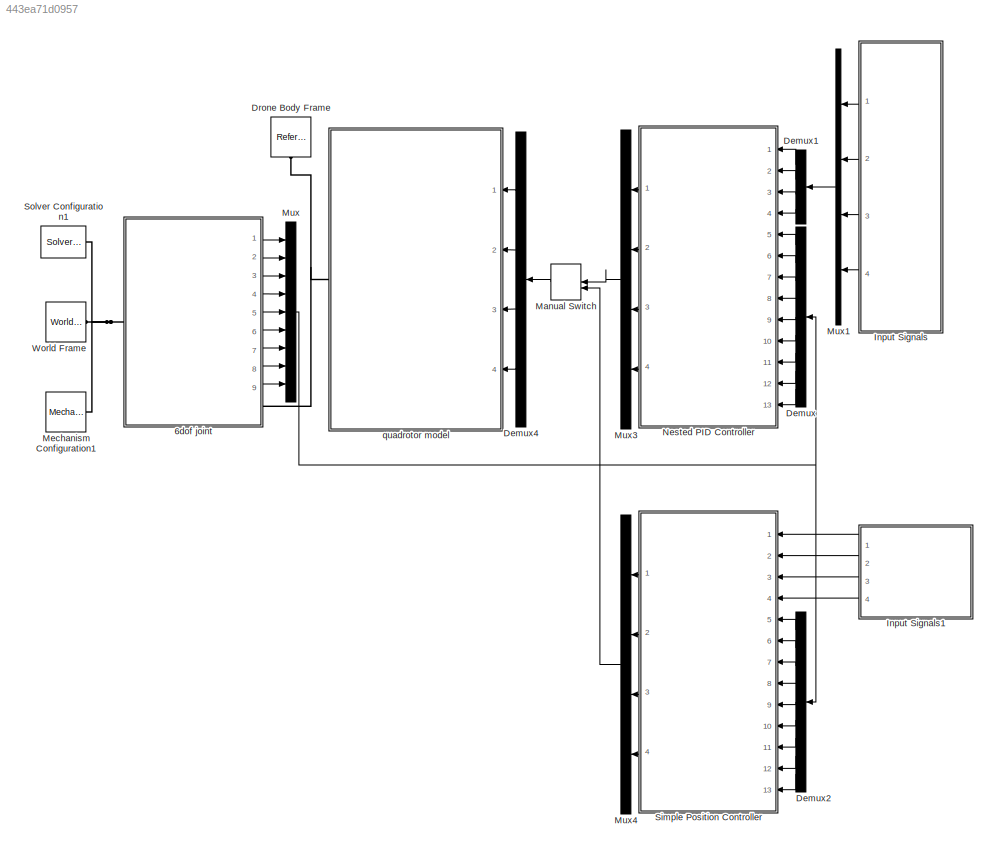
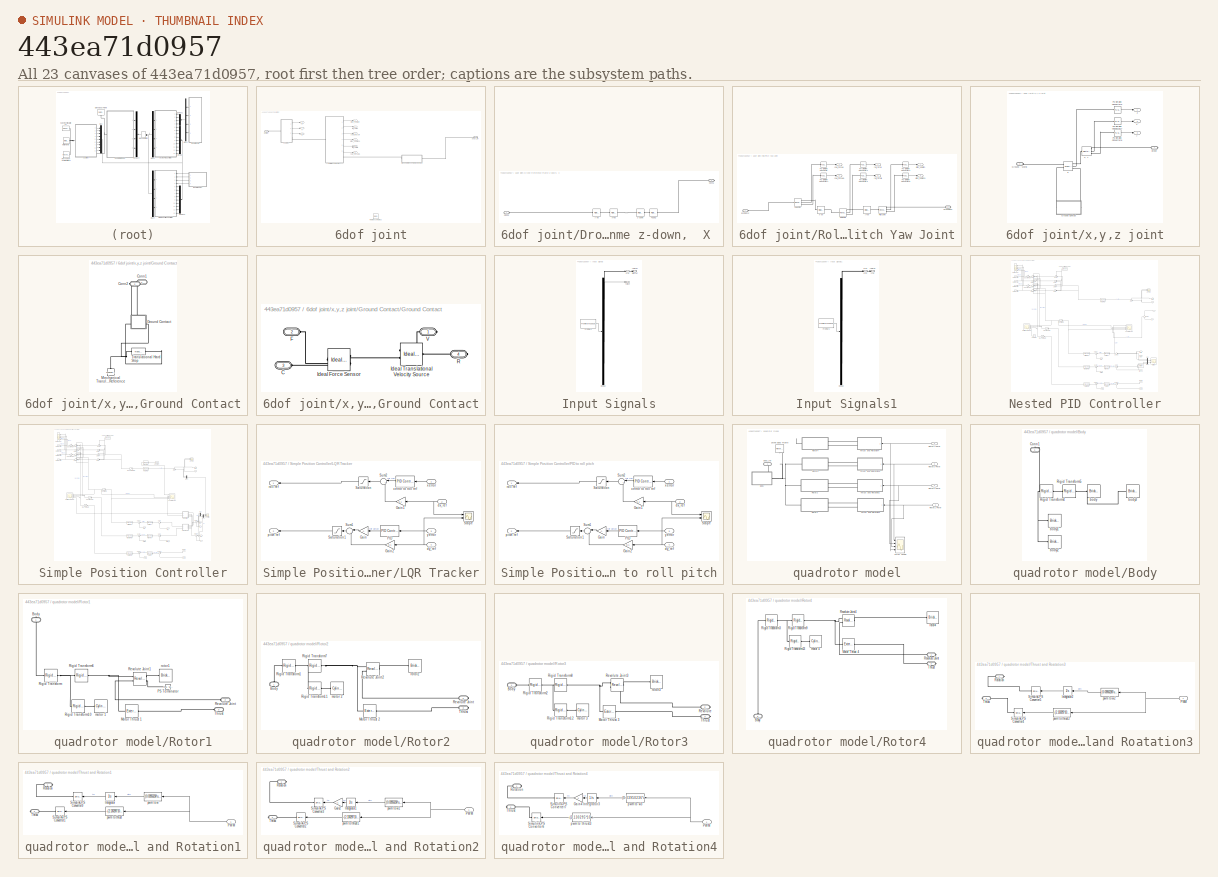
[diagram: thumbnail index - all 23 canvases of the model, root first then tree order]
MODEL slx_443ea71d0957
KIND model
CONFIG AbsTol = auto
CONFIG EnableMultiTasking = off
CONFIG FixedStep = auto
CONFIG MaxStep = auto
CONFIG MinStep = auto
CONFIG RelTol = 1e-5
CONFIG SampleTimeConstraint = Unconstrained
CONFIG SolverName = ode15s
CONFIG StartTime = 0.0
CONFIG StopTime = 20
BLOCK [SubSystem] 6dof joint
  Ports = [0, 9, 0, 0, 0, 1, 1]
  RequestExecContextInheritance = off
BLOCK [SubSystem] 6dof joint/Drone Reference Frame z-down,  X 
  Ports = [0, 0, 0, 0, 0, 1, 1]
  RequestExecContextInheritance = off
BLOCK [Reference] 6dof joint/Drone Reference Frame z-down,  X /45deg  REF=sm_lib/Frames and
Transforms/Rigid
Transform
  Ports = [0, 0, 0, 0, 0, 1, 1]
  SourceBlock = sm_lib/Frames and\nTransforms/Rigid\nTransform
  SourceProductBaseCode = MS
  SourceType = Rigid\nTransform
BLOCK [PMIOPort] 6dof joint/Drone Reference Frame z-down,  X /Conn1
  Side = Right
BLOCK [PMIOPort] 6dof joint/Drone Reference Frame z-down,  X /Conn2
  Port = 2
  Side = Left
BLOCK [Reference] 6dof joint/Drone Reference Frame z-down,  X /x +90  REF=sm_lib/Frames and
Transforms/Rigid
Transform
  Ports = [0, 0, 0, 0, 0, 1, 1]
  SourceBlock = sm_lib/Frames and\nTransforms/Rigid\nTransform
  SourceProductBaseCode = MS
  SourceType = Rigid\nTransform
BLOCK [Reference] 6dof joint/Drone Reference Frame z-down,  X /y -90  REF=sm_lib/Frames and
Transforms/Rigid
Transform
  Ports = [0, 0, 0, 0, 0, 1, 1]
  SourceBlock = sm_lib/Frames and\nTransforms/Rigid\nTransform
  SourceProductBaseCode = MS
  SourceType = Rigid\nTransform
BLOCK [Reference] 6dof joint/Drone Reference Frame z-down,  X /z-down  REF=sm_lib/Frames and
Transforms/Rigid
Transform
  Ports = [0, 0, 0, 0, 0, 1, 1]
  SourceBlock = sm_lib/Frames and\nTransforms/Rigid\nTransform
  SourceProductBaseCode = MS
  SourceType = Rigid\nTransform
BLOCK [Reference] 6dof joint/Reference Frame3  REF=sm_lib/Frames and
Transforms/Reference
Frame
  Commented = on
  NameLocation = right
  Ports = [0, 0, 0, 0, 0, 0, 1]
  SourceBlock = sm_lib/Frames and\nTransforms/Reference\nFrame
  SourceProductBaseCode = MS
  SourceType = Reference\nFrame
BLOCK [SubSystem] 6dof joint/Roll Pitch Yaw Joint
  Ports = [0, 6, 0, 0, 0, 1, 1]
  RequestExecContextInheritance = off
BLOCK [PMIOPort] 6dof joint/Roll Pitch Yaw Joint/Drone Body
  Side = Right
BLOCK [PMIOPort] 6dof joint/Roll Pitch Yaw Joint/Drone xyz
  Port = 2
  Side = Left
BLOCK [Reference] 6dof joint/Roll Pitch Yaw Joint/PS-Simulink Converter  REF=nesl_utility/PS-Simulink
Converter
  Ports = [0, 1, 0, 0, 0, 1]
  SourceBlock = nesl_utility/PS-Simulink\nConverter
  SourceProductBaseCode = PW,SS
  SourceType = PS-Simulink\nConverter
BLOCK [Reference] 6dof joint/Roll Pitch Yaw Joint/PS-Simulink Converter1  REF=nesl_utility/PS-Simulink
Converter
  Ports = [0, 1, 0, 0, 0, 1]
  SourceBlock = nesl_utility/PS-Simulink\nConverter
  SourceProductBaseCode = PW,SS
  SourceType = PS-Simulink\nConverter
BLOCK [Reference] 6dof joint/Roll Pitch Yaw Joint/PS-Simulink Converter2  REF=nesl_utility/PS-Simulink
Converter
  Ports = [0, 1, 0, 0, 0, 1]
  SourceBlock = nesl_utility/PS-Simulink\nConverter
  SourceProductBaseCode = PW,SS
  SourceType = PS-Simulink\nConverter
BLOCK [Reference] 6dof joint/Roll Pitch Yaw Joint/PS-Simulink Converter3  REF=nesl_utility/PS-Simulink
Converter
  Ports = [0, 1, 0, 0, 0, 1]
  SourceBlock = nesl_utility/PS-Simulink\nConverter
  SourceProductBaseCode = PW,SS
  SourceType = PS-Simulink\nConverter
BLOCK [Reference] 6dof joint/Roll Pitch Yaw Joint/PS-Simulink Converter4  REF=nesl_utility/PS-Simulink
Converter
  Ports = [0, 1, 0, 0, 0, 1]
  SourceBlock = nesl_utility/PS-Simulink\nConverter
  SourceProductBaseCode = PW,SS
  SourceType = PS-Simulink\nConverter
BLOCK [Reference] 6dof joint/Roll Pitch Yaw Joint/PS-Simulink Converter5  REF=nesl_utility/PS-Simulink
Converter
  Ports = [0, 1, 0, 0, 0, 1]
  SourceBlock = nesl_utility/PS-Simulink\nConverter
  SourceProductBaseCode = PW,SS
  SourceType = PS-Simulink\nConverter
BLOCK [Reference] 6dof joint/Roll Pitch Yaw Joint/Pitch Joint  REF=sm_lib/Joints/Revolute Joint
  Ports = [0, 0, 0, 0, 0, 1, 3]
  SourceBlock = sm_lib/Joints/Revolute Joint
  SourceProductBaseCode = MS
  SourceType = Revolute Joint
BLOCK [Reference] 6dof joint/Roll Pitch Yaw Joint/Roll Joint1  REF=sm_lib/Joints/Revolute Joint
  Ports = [0, 0, 0, 0, 0, 1, 3]
  SourceBlock = sm_lib/Joints/Revolute Joint
  SourceProductBaseCode = MS
  SourceType = Revolute Joint
BLOCK [Reference] 6dof joint/Roll Pitch Yaw Joint/Yaw Joint  REF=sm_lib/Joints/Revolute Joint
  Ports = [0, 0, 0, 0, 0, 1, 3]
  SourceBlock = sm_lib/Joints/Revolute Joint
  SourceProductBaseCode = MS
  SourceType = Revolute Joint
BLOCK [Outport] 6dof joint/Roll Pitch Yaw Joint/pitch_x dpitch
BLOCK [Outport] 6dof joint/Roll Pitch Yaw Joint/pitch_x dpitch1
  Port = 4
BLOCK [Outport] 6dof joint/Roll Pitch Yaw Joint/roll_y droll
  Port = 2
BLOCK [Outport] 6dof joint/Roll Pitch Yaw Joint/roll_y droll1
  Port = 5
BLOCK [Reference] 6dof joint/Roll Pitch Yaw Joint/x -90  REF=sm_lib/Frames and
Transforms/Rigid
Transform
  Ports = [0, 0, 0, 0, 0, 1, 1]
  SourceBlock = sm_lib/Frames and\nTransforms/Rigid\nTransform
  SourceProductBaseCode = MS
  SourceType = Rigid\nTransform
BLOCK [Reference] 6dof joint/Roll Pitch Yaw Joint/y +90  REF=sm_lib/Frames and
Transforms/Rigid
Transform
  Ports = [0, 0, 0, 0, 0, 1, 1]
  SourceBlock = sm_lib/Frames and\nTransforms/Rigid\nTransform
  SourceProductBaseCode = MS
  SourceType = Rigid\nTransform
BLOCK [Outport] 6dof joint/Roll Pitch Yaw Joint/yaw_z dyaw
  Port = 3
BLOCK [Outport] 6dof joint/Roll Pitch Yaw Joint/yaw_z dyaw1
  Port = 6
BLOCK [PMIOPort] 6dof joint/body_ref
  Side = Right
BLOCK [Outport] 6dof joint/pitch_x dpitch
  Port = 4
BLOCK [Outport] 6dof joint/pitch_x dpitch1
  Port = 7
BLOCK [Outport] 6dof joint/roll_y droll
  Port = 5
BLOCK [Outport] 6dof joint/roll_y droll1
  Port = 8
BLOCK [PMIOPort] 6dof joint/world ref
  Port = 2
  Side = Left
BLOCK [Outport] 6dof joint/x
  Port = 2
BLOCK [SubSystem] 6dof joint/x,y,z joint
  Ports = [0, 3, 0, 0, 0, 1, 1]
  RequestExecContextInheritance = off
BLOCK [PMIOPort] 6dof joint/x,y,z joint/Drone
  Side = Right
BLOCK [PMIOPort] 6dof joint/x,y,z joint/Ground - World
  Port = 2
  Side = Left
BLOCK [SubSystem] 6dof joint/x,y,z joint/Ground Contact
  Ports = [0, 0, 0, 0, 0, 1, 1]
  RequestExecContextInheritance = off
BLOCK [PMIOPort] 6dof joint/x,y,z joint/Ground Contact/Conn1
  Side = Left
BLOCK [PMIOPort] 6dof joint/x,y,z joint/Ground Contact/Conn2
  Port = 2
  Side = Right
BLOCK [SubSystem] 6dof joint/x,y,z joint/Ground Contact/Ground Contact
  Ports = [0, 0, 0, 0, 0, 2, 2]
  RequestExecContextInheritance = off
BLOCK [PMIOPort] 6dof joint/x,y,z joint/Ground Contact/Ground Contact/C
  Port = 3
  Side = Left
BLOCK [PMIOPort] 6dof joint/x,y,z joint/Ground Contact/Ground Contact/F
  NameLocation = top
  Port = 2
  Side = Left
BLOCK [Reference] 6dof joint/x,y,z joint/Ground Contact/Ground Contact/Ideal Force Sensor  REF=fl_lib/Mechanical/Mechanical Sensors/Ideal Force Sensor
  Ports = [0, 0, 0, 0, 0, 1, 2]
  SourceBlock = fl_lib/Mechanical/Mechanical Sensors/Ideal Force Sensor
  SourceProductBaseCode = SS
  SourceType = Ideal Force Sensor
BLOCK [Reference] 6dof joint/x,y,z joint/Ground Contact/Ground Contact/Ideal Translational Velocity Source  REF=fl_lib/Mechanical/Mechanical Sources/Ideal Translational
Velocity Source
  Ports = [0, 0, 0, 0, 0, 1, 2]
  SourceBlock = fl_lib/Mechanical/Mechanical Sources/Ideal Translational\nVelocity Source
  SourceProductBaseCode = SS
  SourceType = Ideal Translational\nVelocity Source
BLOCK [PMIOPort] 6dof joint/x,y,z joint/Ground Contact/Ground Contact/R
  Port = 4
  Side = Right
BLOCK [PMIOPort] 6dof joint/x,y,z joint/Ground Contact/Ground Contact/V
  NameLocation = top
  Side = Right
BLOCK [Reference] 6dof joint/x,y,z joint/Ground Contact/Mechanical Translational Reference  REF=fl_lib/Mechanical/Translational
Elements/Mechanical
Translational
Reference
  NameLocation = right
  Ports = [0, 0, 0, 0, 0, 1]
  SourceBlock = fl_lib/Mechanical/Translational\nElements/Mechanical\nTranslational\nReference
  SourceProductBaseCode = SS
  SourceType = Mechanical\nTranslational\nReference
BLOCK [Reference] 6dof joint/x,y,z joint/Ground Contact/Translational Hard Stop  REF=fl_lib/Mechanical/Translational
Elements/Translational Hard
Stop
  Ports = [0, 0, 0, 0, 0, 1, 1]
  SourceBlock = fl_lib/Mechanical/Translational\nElements/Translational Hard\nStop
  SourceProductBaseCode = SS
  SourceType = Translational Hard\nStop
BLOCK [Reference] 6dof joint/x,y,z joint/PS-Simulink Converter6  REF=nesl_utility/PS-Simulink
Converter
  Ports = [0, 1, 0, 0, 0, 1]
  SourceBlock = nesl_utility/PS-Simulink\nConverter
  SourceProductBaseCode = PW,SS
  SourceType = PS-Simulink\nConverter
BLOCK [Reference] 6dof joint/x,y,z joint/PS-Simulink Converter7  REF=nesl_utility/PS-Simulink
Converter
  Ports = [0, 1, 0, 0, 0, 1]
  SourceBlock = nesl_utility/PS-Simulink\nConverter
  SourceProductBaseCode = PW,SS
  SourceType = PS-Simulink\nConverter
BLOCK [Reference] 6dof joint/x,y,z joint/PS-Simulink Converter8  REF=nesl_utility/PS-Simulink
Converter
  Ports = [0, 1, 0, 0, 0, 1]
  SourceBlock = nesl_utility/PS-Simulink\nConverter
  SourceProductBaseCode = PW,SS
  SourceType = PS-Simulink\nConverter
BLOCK [Reference] 6dof joint/x,y,z joint/X, Y  REF=sm_lib/Joints/Rectangular
Joint
  Ports = [0, 0, 0, 0, 0, 1, 3]
  SourceBlock = sm_lib/Joints/Rectangular\nJoint
  SourceProductBaseCode = MS
  SourceType = Rectangular\nJoint
BLOCK [Reference] 6dof joint/x,y,z joint/Z  REF=sm_lib/Joints/Prismatic
Joint
  Ports = [0, 0, 0, 0, 0, 2, 3]
  SourceBlock = sm_lib/Joints/Prismatic\nJoint
  SourceProductBaseCode = MS
  SourceType = Prismatic\nJoint
BLOCK [Outport] 6dof joint/x,y,z joint/x
  Port = 2
BLOCK [Outport] 6dof joint/x,y,z joint/y
  Port = 3
BLOCK [Outport] 6dof joint/x,y,z joint/z
BLOCK [Outport] 6dof joint/y
  Port = 3
BLOCK [Outport] 6dof joint/yaw_z dyaw
  Port = 6
BLOCK [Outport] 6dof joint/yaw_z dyaw1
  Port = 9
BLOCK [Outport] 6dof joint/z
BLOCK [Demux] Demux
  NameLocation = top
  Outputs = 9
  Ports = [1, 9]
BLOCK [Demux] Demux1
  NameLocation = top
  Ports = [1, 4]
BLOCK [Demux] Demux2
  NameLocation = top
  Outputs = 9
  Ports = [1, 9]
BLOCK [Demux] Demux4
  NameLocation = top
  Ports = [1, 4]
BLOCK [Reference] Drone Body Frame  REF=sm_lib/Frames and
Transforms/Reference
Frame
  NameLocation = left
  Ports = [0, 0, 0, 0, 0, 0, 1]
  SourceBlock = sm_lib/Frames and\nTransforms/Reference\nFrame
  SourceProductBaseCode = MS
  SourceType = Reference\nFrame
BLOCK [SubSystem] Input Signals
  ClipboardFcn = sigbuilder_block('clipboard');
  CloseFcn = sigbuilder_block('close');
  ContinueFcn = sigbuilder_block('continue');
  CopyFcn = sigbuilder_block('copy');
  DeleteFcn = sigbuilder_block('delete');
  LoadFcn = sigbuilder_block('load');
  MaskHideContents = on
  ModelCloseFcn = sigbuilder_block('modelClose');
  NameChangeFcn = sigbuilder_block('namechange');
  OpenFcn = sigbuilder_block('open',[222 81 756 505.2 ]);
  PauseFcn = sigbuilder_block('pause');
  Ports = [0, 4]
  PreSaveFcn = sigbuilder_block('preSave');
  RequestExecContextInheritance = off
  StartFcn = sigbuilder_block('start');
  StopFcn = sigbuilder_block('stop');
  Tag = STV Subsys
BLOCK [Demux] Input Signals/Demux
  DisplayOption = none
  Ports = [1, 4]
  Tag = STV Demux
BLOCK [FromWorkspace] Input Signals/FromWs
  Tag = STV FromWs
  VariableName = tuvar
BLOCK [Outport] Input Signals/pitch ref
  Port = 3
  Tag = STV Outport
BLOCK [Outport] Input Signals/roll ref
  Port = 2
  Tag = STV Outport
BLOCK [Outport] Input Signals/yaw ref
  Port = 4
  Tag = STV Outport
BLOCK [Outport] Input Signals/z ref
  Tag = STV Outport
BLOCK [SubSystem] Input Signals1
  ClipboardFcn = sigbuilder_block('clipboard');
  CloseFcn = sigbuilder_block('close');
  ContinueFcn = sigbuilder_block('continue');
  CopyFcn = sigbuilder_block('copy');
  DeleteFcn = sigbuilder_block('delete');
  LoadFcn = sigbuilder_block('load');
  MaskHideContents = on
  ModelCloseFcn = sigbuilder_block('modelClose');
  NameChangeFcn = sigbuilder_block('namechange');
  OpenFcn = sigbuilder_block('open',[596.4 75.6 756 505.2 ]);
  PauseFcn = sigbuilder_block('pause');
  Ports = [0, 4]
  PreSaveFcn = sigbuilder_block('preSave');
  RequestExecContextInheritance = off
  StartFcn = sigbuilder_block('start');
  StopFcn = sigbuilder_block('stop');
  Tag = STV Subsys
BLOCK [Demux] Input Signals1/Demux
  DisplayOption = none
  Ports = [1, 4]
  Tag = STV Demux
BLOCK [FromWorkspace] Input Signals1/FromWs
  Tag = STV FromWs
  VariableName = tuvar
BLOCK [Outport] Input Signals1/x ref
  Tag = STV Outport
BLOCK [Outport] Input Signals1/y ref
  Port = 2
  Tag = STV Outport
BLOCK [Outport] Input Signals1/yaw ref
  Port = 4
  Tag = STV Outport
BLOCK [Outport] Input Signals1/z ref
  Port = 3
  Tag = STV Outport
BLOCK [ManualSwitch] Manual Switch
  CurrentSetting = 0
  NameLocation = top
BLOCK [Reference] Mechanism Configuration1  REF=sm_lib/Utilities/Mechanism
Configuration
  Ports = [0, 0, 0, 0, 0, 0, 1]
  SourceBlock = sm_lib/Utilities/Mechanism\nConfiguration
  SourceProductBaseCode = MS
  SourceType = Mechanism\nConfiguration
BLOCK [Mux] Mux
  DisplayOption = bar
  Inputs = 9
  Ports = [9, 1]
BLOCK [Mux] Mux1
  DisplayOption = bar
  NameLocation = top
  Ports = [4, 1]
BLOCK [Mux] Mux3
  DisplayOption = bar
  NameLocation = top
  Ports = [4, 1]
BLOCK [Mux] Mux4
  DisplayOption = bar
  NameLocation = top
  Ports = [4, 1]
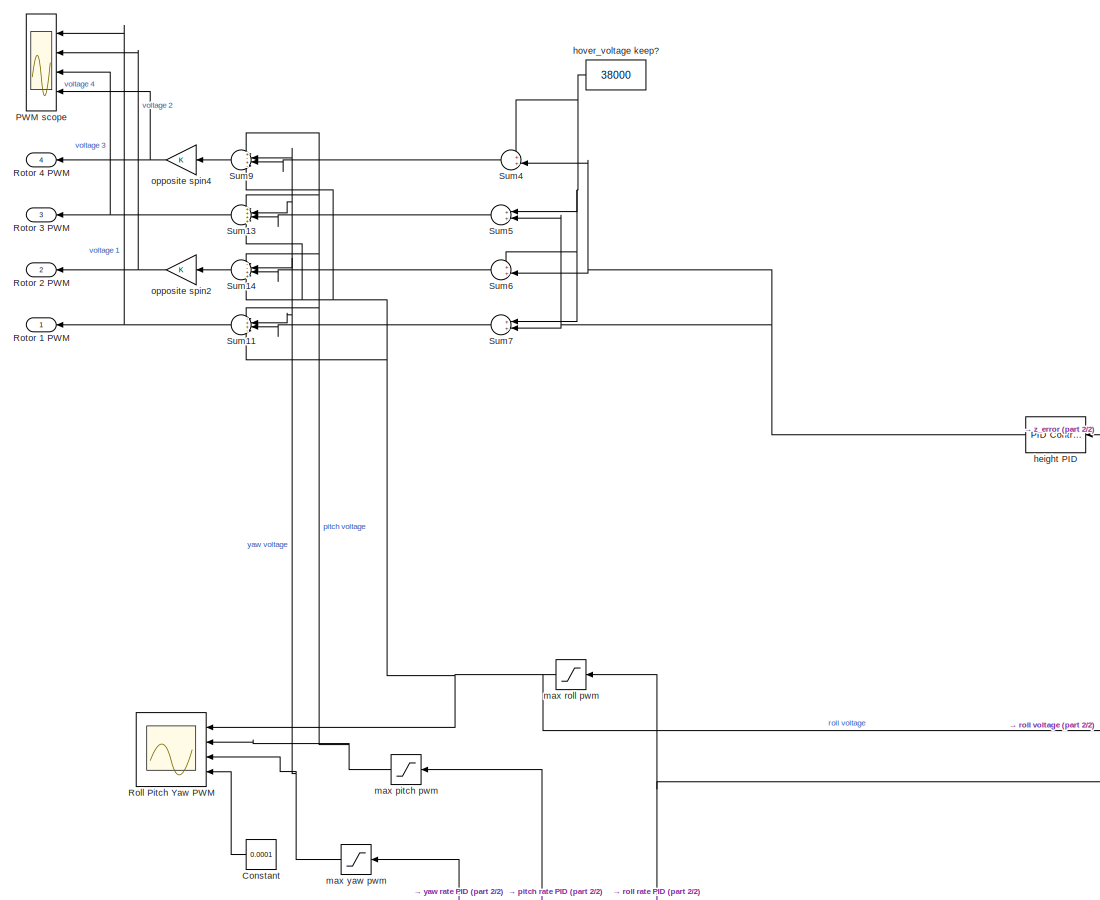
[diagram: Nested PID Controller - part 1/2, top left region]
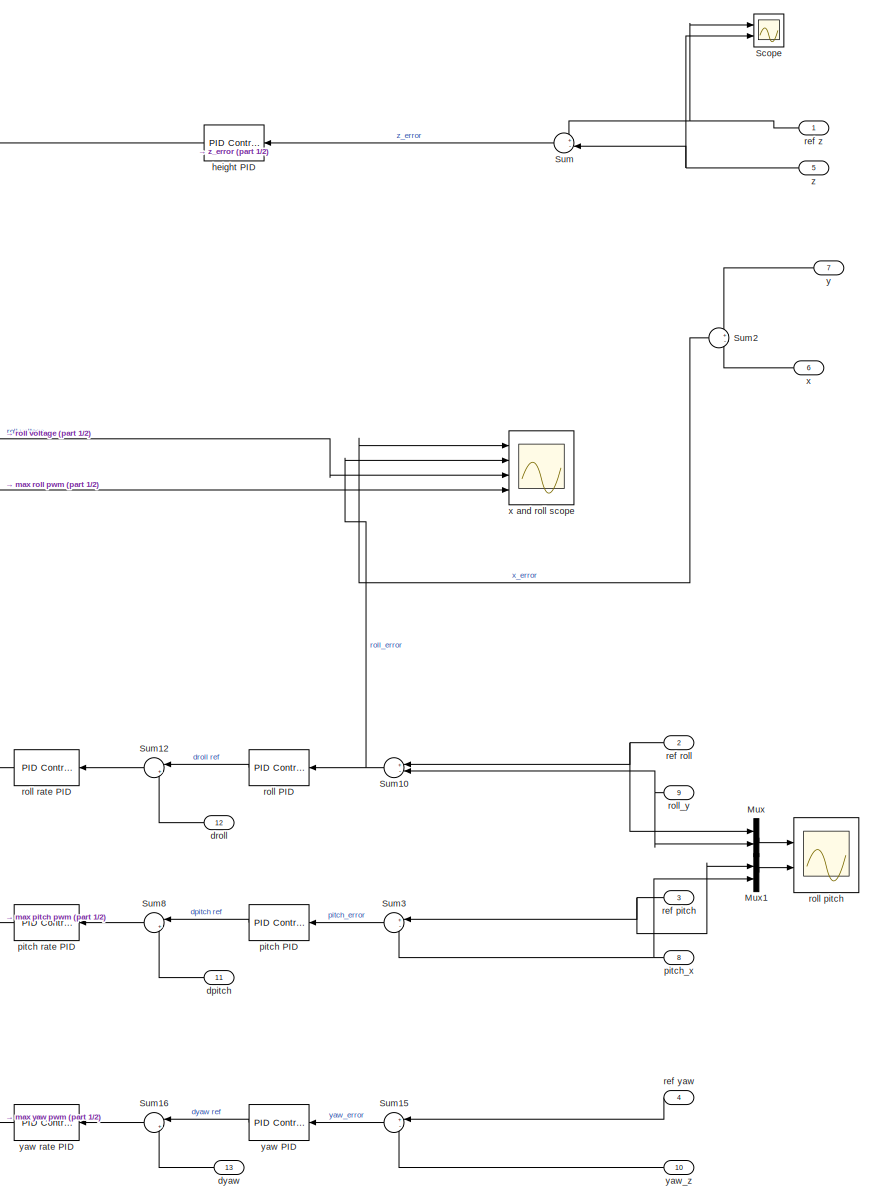
[diagram: Nested PID Controller - part 2/2, right side, full height]
BLOCK [SubSystem] Nested PID Controller
  Ports = [13, 4]
  RequestExecContextInheritance = off
BLOCK [Constant] Nested PID Controller/Constant
  NameLocation = top
  Value = 0.0001
BLOCK [Mux] Nested PID Controller/Mux
  DisplayOption = bar
  Inputs = 2
  Ports = [2, 1]
BLOCK [Mux] Nested PID Controller/Mux1
  DisplayOption = bar
  Inputs = 2
  Ports = [2, 1]
BLOCK [Scope] Nested PID Controller/PWM scope
  Floating = off
  NumInputPorts = 4
  Ports = [4]
  ScopeSpecificationString = Simulink.scopes.TimeScopeBlockCfg('CurrentConfiguration', extmgr.ConfigurationSet(extmgr.Configuration('Core','General UI',true),extmgr.Configuration('Core','Source UI',true),extmgr.Configuration('Sources','WiredSimulink',true,'DataLoggingVariableName','ScopeData1'),extmgr.Configuration('Visuals','Time Domain',true,'SerializedDisplays',{struct('MinYLimReal','30000.00000','MaxYLimReal','50000.00000...<+1509ch>
BLOCK [Scope] Nested PID Controller/Roll Pitch Yaw PWM
  Floating = off
  NameLocation = top
  NumInputPorts = 4
  Ports = [4]
  ScopeSpecificationString = Simulink.scopes.TimeScopeBlockCfg('CurrentConfiguration', extmgr.ConfigurationSet(extmgr.Configuration('Core','General UI',true),extmgr.Configuration('Core','Source UI',true),extmgr.Configuration('Sources','WiredSimulink',true,'DataLoggingVariableName','ScopeData1'),extmgr.Configuration('Visuals','Time Domain',true,'SerializedDisplays',{struct('MinYLimReal','-81918.75','MaxYLimReal','81918.75','YL...<+3691ch>
BLOCK [Outport] Nested PID Controller/Rotor 1 PWM
BLOCK [Outport] Nested PID Controller/Rotor 2 PWM
  Port = 2
BLOCK [Outport] Nested PID Controller/Rotor 3 PWM
  Port = 3
BLOCK [Outport] Nested PID Controller/Rotor 4 PWM
  Port = 4
BLOCK [Scope] Nested PID Controller/Scope
  Floating = off
  NumInputPorts = 2
  Ports = [2]
  ScopeSpecificationString = Simulink.scopes.TimeScopeBlockCfg('CurrentConfiguration', extmgr.ConfigurationSet(extmgr.Configuration('Core','General UI',true),extmgr.Configuration('Core','Source UI',true),extmgr.Configuration('Sources','WiredSimulink',true,'DataLoggingVariableName','ScopeData2'),extmgr.Configuration('Visuals','Time Domain',true,'SerializedDisplays',{struct('MinYLimReal','-0.12375','MaxYLimReal','1.11375','YLab...<+1366ch>
BLOCK [Sum] Nested PID Controller/Sum
  Inputs = +-
  NameLocation = top
  Ports = [2, 1]
BLOCK [Sum] Nested PID Controller/Sum10
  Inputs = +-
  NameLocation = top
  Ports = [2, 1]
BLOCK [Sum] Nested PID Controller/Sum11
  Inputs = -++-
  NameLocation = top
  Ports = [4, 1]
BLOCK [Sum] Nested PID Controller/Sum12
  Inputs = |+-
  NameLocation = top
  Ports = [2, 1]
BLOCK [Sum] Nested PID Controller/Sum13
  Inputs = ++++
  NameLocation = top
  Ports = [4, 1]
BLOCK [Sum] Nested PID Controller/Sum14
  Inputs = --++
  NameLocation = top
  Ports = [4, 1]
BLOCK [Sum] Nested PID Controller/Sum15
  Inputs = +-
  NameLocation = top
  Ports = [2, 1]
BLOCK [Sum] Nested PID Controller/Sum16
  Inputs = |+-
  NameLocation = top
  Ports = [2, 1]
BLOCK [Sum] Nested PID Controller/Sum2
  Inputs = +-
  NameLocation = top
  Ports = [2, 1]
BLOCK [Sum] Nested PID Controller/Sum3
  Inputs = +-
  NameLocation = top
  Ports = [2, 1]
BLOCK [Sum] Nested PID Controller/Sum4
  Inputs = ++|
  NameLocation = top
  Ports = [2, 1]
BLOCK [Sum] Nested PID Controller/Sum5
  Inputs = ++|
  NameLocation = top
  Ports = [2, 1]
BLOCK [Sum] Nested PID Controller/Sum6
  Inputs = ++|
  NameLocation = top
  Ports = [2, 1]
BLOCK [Sum] Nested PID Controller/Sum7
  Inputs = ++|
  NameLocation = top
  Ports = [2, 1]
BLOCK [Sum] Nested PID Controller/Sum8
  Inputs = |+-
  NameLocation = top
  Ports = [2, 1]
BLOCK [Sum] Nested PID Controller/Sum9
  Inputs = +-+-
  NameLocation = top
  Ports = [4, 1]
BLOCK [Inport] Nested PID Controller/dpitch
  Port = 11
BLOCK [Inport] Nested PID Controller/droll
  Port = 12
BLOCK [Inport] Nested PID Controller/dyaw
  Port = 13
BLOCK [Reference] Nested PID Controller/height PID  REF=slpidlib/PID Controller
  NameLocation = top
  Ports = [1, 1]
  SourceBlock = slpidlib/PID Controller
  SourceProductBaseCode = SL
  SourceType = PID 1dof
BLOCK [Constant] Nested PID Controller/hover_voltage keep?
  NameLocation = top
  Value = 38000
BLOCK [Saturate] Nested PID Controller/max pitch pwm
  LowerLimit = -65535
  NameLocation = top
  UpperLimit = 65535
  ZeroCross = off
BLOCK [Saturate] Nested PID Controller/max roll pwm
  LowerLimit = -65535
  NameLocation = top
  UpperLimit = 65535
  ZeroCross = off
BLOCK [Saturate] Nested PID Controller/max yaw pwm
  LowerLimit = -65535
  NameLocation = top
  UpperLimit = 65535
  ZeroCross = off
BLOCK [Gain] Nested PID Controller/opposite spin2
  NameLocation = top
BLOCK [Gain] Nested PID Controller/opposite spin4
  NameLocation = top
BLOCK [Reference] Nested PID Controller/pitch PID  REF=slpidlib/PID Controller
  NameLocation = top
  Ports = [1, 1]
  SourceBlock = slpidlib/PID Controller
  SourceProductBaseCode = SL
  SourceType = PID 1dof
BLOCK [Reference] Nested PID Controller/pitch rate PID  REF=slpidlib/PID Controller
  NameLocation = top
  Ports = [1, 1]
  SourceBlock = slpidlib/PID Controller
  SourceProductBaseCode = SL
  SourceType = PID 1dof
BLOCK [Inport] Nested PID Controller/pitch_x
  Port = 8
BLOCK [Inport] Nested PID Controller/ref pitch
  Port = 3
BLOCK [Inport] Nested PID Controller/ref roll
  Port = 2
BLOCK [Inport] Nested PID Controller/ref yaw
  Port = 4
BLOCK [Inport] Nested PID Controller/ref z
BLOCK [Reference] Nested PID Controller/roll PID  REF=slpidlib/PID Controller
  NameLocation = top
  Ports = [1, 1]
  SourceBlock = slpidlib/PID Controller
  SourceProductBaseCode = SL
  SourceType = PID 1dof
BLOCK [Scope] Nested PID Controller/roll pitch 
  Floating = off
  NumInputPorts = 2
  Ports = [2]
  ScopeSpecificationString = Simulink.scopes.TimeScopeBlockCfg('CurrentConfiguration', extmgr.ConfigurationSet(extmgr.Configuration('Core','General UI',true,'FigureColor',[1 1 1]),extmgr.Configuration('Core','Source UI',true),extmgr.Configuration('Sources','WiredSimulink',true,'DataLoggingVariableName','ScopeData1'),extmgr.Configuration('Visuals','Time Domain',true,'SerializedDisplays',{struct('MinYLimReal','-0.03591','MaxYLi...<+2770ch>
BLOCK [Reference] Nested PID Controller/roll rate PID  REF=slpidlib/PID Controller
  NameLocation = top
  Ports = [1, 1]
  SourceBlock = slpidlib/PID Controller
  SourceProductBaseCode = SL
  SourceType = PID 1dof
BLOCK [Inport] Nested PID Controller/roll_y
  Port = 9
BLOCK [Inport] Nested PID Controller/x
  Port = 6
BLOCK [Scope] Nested PID Controller/x and roll scope 
  Floating = off
  NumInputPorts = 4
  Ports = [4]
  ScopeSpecificationString = Simulink.scopes.TimeScopeBlockCfg('CurrentConfiguration', extmgr.ConfigurationSet(extmgr.Configuration('Core','General UI',true),extmgr.Configuration('Core','Source UI',true),extmgr.Configuration('Sources','WiredSimulink',true,'DataLoggingVariableName','ScopeData3'),extmgr.Configuration('Visuals','Time Domain',true,'SerializedDisplays',{struct('MinYLimReal','-11.1433','MaxYLimReal','1.32628','YLab...<+3676ch>
BLOCK [Inport] Nested PID Controller/y
  Port = 7
BLOCK [Reference] Nested PID Controller/yaw PID  REF=slpidlib/PID Controller
  NameLocation = top
  Ports = [1, 1]
  SourceBlock = slpidlib/PID Controller
  SourceProductBaseCode = SL
  SourceType = PID 1dof
BLOCK [Reference] Nested PID Controller/yaw rate PID  REF=slpidlib/PID Controller
  NameLocation = top
  Ports = [1, 1]
  SourceBlock = slpidlib/PID Controller
  SourceProductBaseCode = SL
  SourceType = PID 1dof
BLOCK [Inport] Nested PID Controller/yaw_z
  Port = 10
BLOCK [Inport] Nested PID Controller/z
  Port = 5
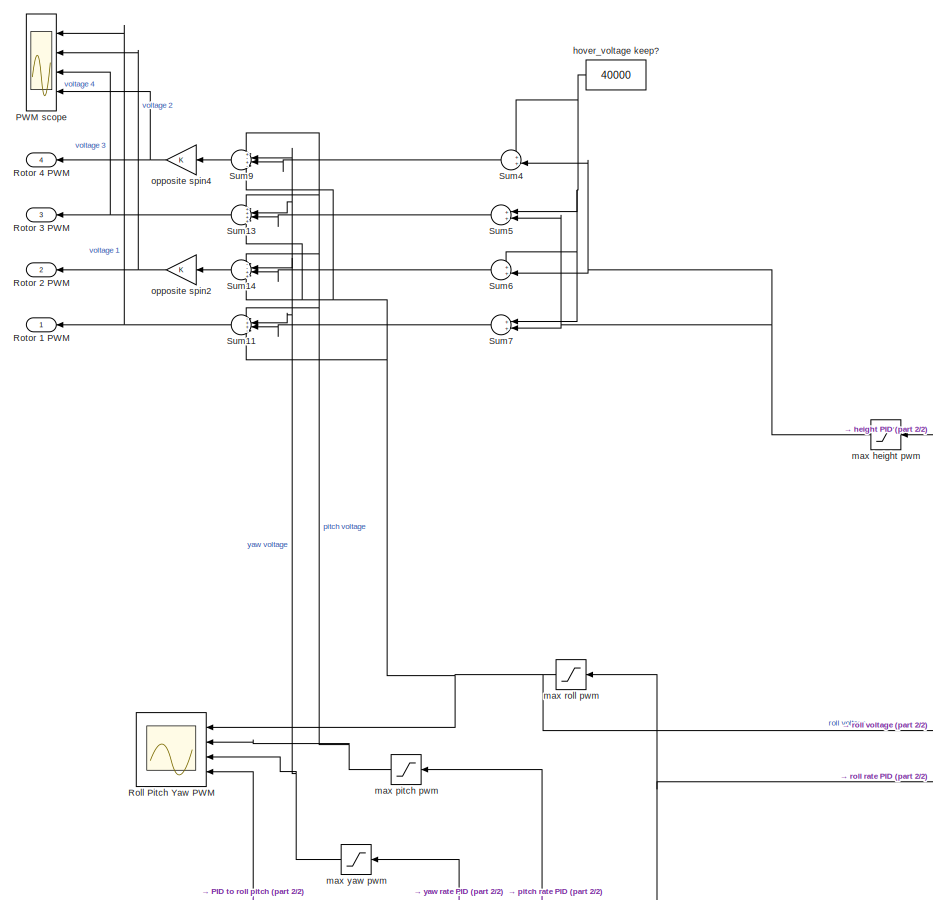
[diagram: Simple Position Controller - part 1/2, top left region]
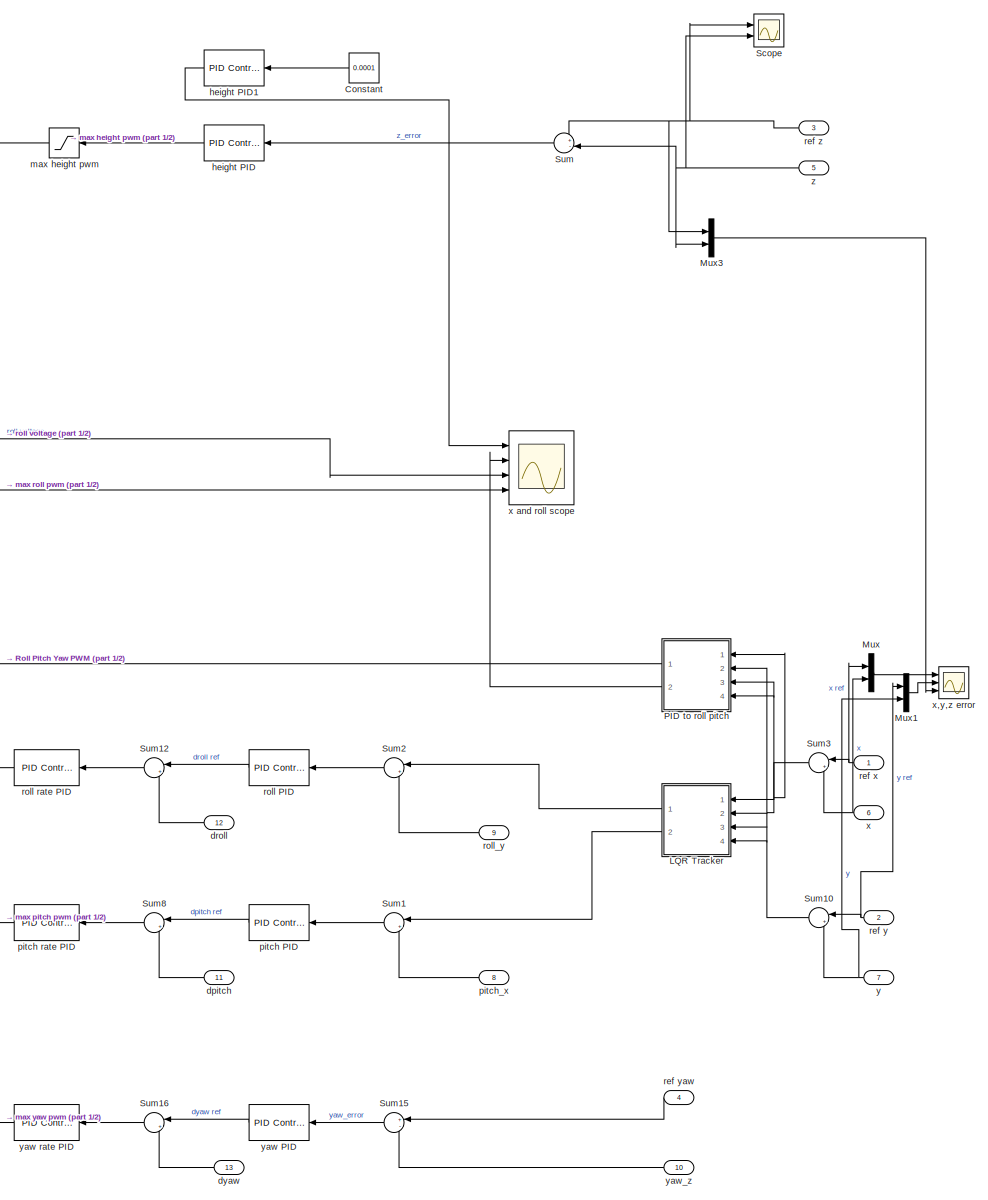
[diagram: Simple Position Controller - part 2/2, right side, full height]
BLOCK [SubSystem] Simple Position Controller
  Ports = [13, 4]
  RequestExecContextInheritance = off
BLOCK [Constant] Simple Position Controller/Constant
  NameLocation = top
  Value = 0.0001
BLOCK [SubSystem] Simple Position Controller/LQR Tracker
  NameLocation = top
  Ports = [4, 2]
  RequestExecContextInheritance = off
BLOCK [Gain] Simple Position Controller/LQR Tracker/Gain
  Gain = -1
  NameLocation = top
BLOCK [Gain] Simple Position Controller/LQR Tracker/Gain1
  Gain = 0.1
  NameLocation = top
BLOCK [Gain] Simple Position Controller/LQR Tracker/Gain2
  Gain = -0.1
  NameLocation = top
BLOCK [Reference] Simple Position Controller/LQR Tracker/PID  REF=slpidlib/PID Controller
  NameLocation = top
  Ports = [1, 1]
  SourceBlock = slpidlib/PID Controller
  SourceProductBaseCode = SL
  SourceType = PID 1dof
BLOCK [Saturate] Simple Position Controller/LQR Tracker/Saturation
  LowerLimit = -20*pi/180
  NameLocation = top
  UpperLimit = 20*pi/180
BLOCK [Saturate] Simple Position Controller/LQR Tracker/Saturation1
  LowerLimit = -20*pi/180
  NameLocation = top
  UpperLimit = 20*pi/180
BLOCK [Scope] Simple Position Controller/LQR Tracker/Scope
  Floating = off
  NumInputPorts = 2
  Ports = [2]
  ScopeSpecificationString = Simulink.scopes.TimeScopeBlockCfg('CurrentConfiguration', extmgr.ConfigurationSet(extmgr.Configuration('Core','General UI',true),extmgr.Configuration('Core','Source UI',true),extmgr.Configuration('Sources','WiredSimulink',true,'DataLoggingVariableName','ScopeData1'),extmgr.Configuration('Visuals','Time Domain',true,'SerializedDisplays',{struct('MinYLimReal','-0.62966','MaxYLimReal','0.6318','YLabe...<+2038ch>
BLOCK [Sum] Simple Position Controller/LQR Tracker/Sum1
  Inputs = |++
  NameLocation = top
  Ports = [2, 1]
BLOCK [Sum] Simple Position Controller/LQR Tracker/Sum2
  Inputs = |++
  NameLocation = top
  Ports = [2, 1]
BLOCK [Inport] Simple Position Controller/LQR Tracker/dx_ref
  NameLocation = top
  Port = 2
BLOCK [Inport] Simple Position Controller/LQR Tracker/dy_ref
  Port = 4
BLOCK [Outport] Simple Position Controller/LQR Tracker/pitch ref
  Port = 2
BLOCK [Outport] Simple Position Controller/LQR Tracker/roll ref
BLOCK [Inport] Simple Position Controller/LQR Tracker/x error
BLOCK [Reference] Simple Position Controller/LQR Tracker/x error to roll ref  REF=slpidlib/PID Controller
  NameLocation = top
  Ports = [1, 1]
  SourceBlock = slpidlib/PID Controller
  SourceProductBaseCode = SL
  SourceType = PID 1dof
BLOCK [Inport] Simple Position Controller/LQR Tracker/y error
  Port = 3
BLOCK [Mux] Simple Position Controller/Mux
  DisplayOption = bar
  Inputs = 2
  Ports = [2, 1]
BLOCK [Mux] Simple Position Controller/Mux1
  DisplayOption = bar
  Inputs = 2
  Ports = [2, 1]
BLOCK [Mux] Simple Position Controller/Mux3
  DisplayOption = bar
  Inputs = 2
  Ports = [2, 1]
BLOCK [SubSystem] Simple Position Controller/PID to roll pitch
  NameLocation = top
  Ports = [4, 2]
  RequestExecContextInheritance = off
BLOCK [Gain] Simple Position Controller/PID to roll pitch/Gain
  Gain = -1
  NameLocation = top
BLOCK [Gain] Simple Position Controller/PID to roll pitch/Gain1
  Gain = 0.1
  NameLocation = top
BLOCK [Gain] Simple Position Controller/PID to roll pitch/Gain2
  Gain = -0.1
  NameLocation = top
BLOCK [Reference] Simple Position Controller/PID to roll pitch/PID  REF=slpidlib/PID Controller
  NameLocation = top
  Ports = [1, 1]
  SourceBlock = slpidlib/PID Controller
  SourceProductBaseCode = SL
  SourceType = PID 1dof
BLOCK [Saturate] Simple Position Controller/PID to roll pitch/Saturation
  LowerLimit = -30*pi/180
  NameLocation = top
  UpperLimit = 30*pi/180
BLOCK [Saturate] Simple Position Controller/PID to roll pitch/Saturation1
  LowerLimit = -30*pi/180
  NameLocation = top
  UpperLimit = 30*pi/180
BLOCK [Scope] Simple Position Controller/PID to roll pitch/Scope
  Floating = off
  NumInputPorts = 2
  Ports = [2]
  ScopeSpecificationString = Simulink.scopes.TimeScopeBlockCfg('CurrentConfiguration', extmgr.ConfigurationSet(extmgr.Configuration('Core','General UI',true),extmgr.Configuration('Core','Source UI',true),extmgr.Configuration('Sources','WiredSimulink',true,'DataLoggingVariableName','ScopeData1'),extmgr.Configuration('Visuals','Time Domain',true,'SerializedDisplays',{struct('MinYLimReal','-0.07813','MaxYLimReal','0.70313','YLab...<+2041ch>
BLOCK [Sum] Simple Position Controller/PID to roll pitch/Sum1
  Inputs = |++
  NameLocation = top
  Ports = [2, 1]
BLOCK [Sum] Simple Position Controller/PID to roll pitch/Sum2
  Inputs = |++
  NameLocation = top
  Ports = [2, 1]
BLOCK [Inport] Simple Position Controller/PID to roll pitch/dx_ref
  NameLocation = top
  Port = 2
BLOCK [Inport] Simple Position Controller/PID to roll pitch/dy_ref
  Port = 4
BLOCK [Outport] Simple Position Controller/PID to roll pitch/pitch ref
  Port = 2
BLOCK [Outport] Simple Position Controller/PID to roll pitch/roll ref
BLOCK [Inport] Simple Position Controller/PID to roll pitch/x error
BLOCK [Reference] Simple Position Controller/PID to roll pitch/x error to roll ref  REF=slpidlib/PID Controller
  NameLocation = top
  Ports = [1, 1]
  SourceBlock = slpidlib/PID Controller
  SourceProductBaseCode = SL
  SourceType = PID 1dof
BLOCK [Inport] Simple Position Controller/PID to roll pitch/y error
  Port = 3
BLOCK [Scope] Simple Position Controller/PWM scope
  Floating = off
  NumInputPorts = 4
  Ports = [4]
  ScopeSpecificationString = Simulink.scopes.TimeScopeBlockCfg('CurrentConfiguration', extmgr.ConfigurationSet(extmgr.Configuration('Core','General UI',true),extmgr.Configuration('Core','Source UI',true),extmgr.Configuration('Sources','WiredSimulink',true,'DataLoggingVariableName','ScopeData1'),extmgr.Configuration('Visuals','Time Domain',true,'SerializedDisplays',{struct('MinYLimReal','30000.00000','MaxYLimReal','50000.00000...<+1509ch>
BLOCK [Scope] Simple Position Controller/Roll Pitch Yaw PWM
  Floating = off
  NameLocation = top
  NumInputPorts = 4
  Ports = [4]
  ScopeSpecificationString = Simulink.scopes.TimeScopeBlockCfg('CurrentConfiguration', extmgr.ConfigurationSet(extmgr.Configuration('Core','General UI',true),extmgr.Configuration('Core','Source UI',true),extmgr.Configuration('Sources','WiredSimulink',true,'DataLoggingVariableName','ScopeData1'),extmgr.Configuration('Visuals','Time Domain',true,'SerializedDisplays',{struct('MinYLimReal','-81918.75','MaxYLimReal','81918.75','YL...<+3702ch>
BLOCK [Outport] Simple Position Controller/Rotor 1 PWM
BLOCK [Outport] Simple Position Controller/Rotor 2 PWM
  Port = 2
BLOCK [Outport] Simple Position Controller/Rotor 3 PWM
  Port = 3
BLOCK [Outport] Simple Position Controller/Rotor 4 PWM
  Port = 4
BLOCK [Scope] Simple Position Controller/Scope
  Floating = off
  NumInputPorts = 2
  Ports = [2]
  ScopeSpecificationString = Simulink.scopes.TimeScopeBlockCfg('CurrentConfiguration', extmgr.ConfigurationSet(extmgr.Configuration('Core','General UI',true),extmgr.Configuration('Core','Source UI',true),extmgr.Configuration('Sources','WiredSimulink',true,'DataLoggingVariableName','ScopeData2'),extmgr.Configuration('Visuals','Time Domain',true,'SerializedDisplays',{struct('MinYLimReal','-0.12375','MaxYLimReal','1.11375','YLab...<+1399ch>
BLOCK [Sum] Simple Position Controller/Sum
  Inputs = +-
  NameLocation = top
  Ports = [2, 1]
BLOCK [Sum] Simple Position Controller/Sum1
  Inputs = |+-
  NameLocation = top
  Ports = [2, 1]
BLOCK [Sum] Simple Position Controller/Sum10
  Inputs = |+-
  NameLocation = top
  Ports = [2, 1]
BLOCK [Sum] Simple Position Controller/Sum11
  Inputs = -++-
  NameLocation = top
  Ports = [4, 1]
BLOCK [Sum] Simple Position Controller/Sum12
  Inputs = |+-
  NameLocation = top
  Ports = [2, 1]
BLOCK [Sum] Simple Position Controller/Sum13
  Inputs = ++++
  NameLocation = top
  Ports = [4, 1]
BLOCK [Sum] Simple Position Controller/Sum14
  Inputs = --++
  NameLocation = top
  Ports = [4, 1]
BLOCK [Sum] Simple Position Controller/Sum15
  Inputs = +-
  NameLocation = top
  Ports = [2, 1]
BLOCK [Sum] Simple Position Controller/Sum16
  Inputs = |+-
  NameLocation = top
  Ports = [2, 1]
BLOCK [Sum] Simple Position Controller/Sum2
  Inputs = |+-
  NameLocation = top
  Ports = [2, 1]
BLOCK [Sum] Simple Position Controller/Sum3
  Inputs = |+-
  NameLocation = top
  Ports = [2, 1]
BLOCK [Sum] Simple Position Controller/Sum4
  Inputs = ++|
  NameLocation = top
  Ports = [2, 1]
BLOCK [Sum] Simple Position Controller/Sum5
  Inputs = ++|
  NameLocation = top
  Ports = [2, 1]
BLOCK [Sum] Simple Position Controller/Sum6
  Inputs = ++|
  NameLocation = top
  Ports = [2, 1]
BLOCK [Sum] Simple Position Controller/Sum7
  Inputs = ++|
  NameLocation = top
  Ports = [2, 1]
BLOCK [Sum] Simple Position Controller/Sum8
  Inputs = |+-
  NameLocation = top
  Ports = [2, 1]
BLOCK [Sum] Simple Position Controller/Sum9
  Inputs = +-+-
  NameLocation = top
  Ports = [4, 1]
BLOCK [Inport] Simple Position Controller/dpitch
  Port = 11
BLOCK [Inport] Simple Position Controller/droll
  Port = 12
BLOCK [Inport] Simple Position Controller/dyaw
  Port = 13
BLOCK [Reference] Simple Position Controller/height PID  REF=slpidlib/PID Controller
  NameLocation = top
  Ports = [1, 1]
  SourceBlock = slpidlib/PID Controller
  SourceProductBaseCode = SL
  SourceType = PID 1dof
BLOCK [Reference] Simple Position Controller/height PID1  REF=slpidlib/PID Controller
  NameLocation = top
  Ports = [1, 1]
  SourceBlock = slpidlib/PID Controller
  SourceProductBaseCode = SL
  SourceType = PID 1dof
BLOCK [Constant] Simple Position Controller/hover_voltage keep?
  NameLocation = top
  Value = 40000
BLOCK [Saturate] Simple Position Controller/max height pwm
  LowerLimit = -38000
  NameLocation = top
  UpperLimit = 30000
  ZeroCross = off
BLOCK [Saturate] Simple Position Controller/max pitch pwm
  LowerLimit = -10000
  NameLocation = top
  UpperLimit = 10000
  ZeroCross = off
BLOCK [Saturate] Simple Position Controller/max roll pwm
  LowerLimit = -10000
  NameLocation = top
  UpperLimit = 10000
  ZeroCross = off
BLOCK [Saturate] Simple Position Controller/max yaw pwm
  LowerLimit = -10000
  NameLocation = top
  UpperLimit = 10000
  ZeroCross = off
BLOCK [Gain] Simple Position Controller/opposite spin2
  NameLocation = top
BLOCK [Gain] Simple Position Controller/opposite spin4
  NameLocation = top
BLOCK [Reference] Simple Position Controller/pitch PID  REF=slpidlib/PID Controller
  NameLocation = top
  Ports = [1, 1]
  SourceBlock = slpidlib/PID Controller
  SourceProductBaseCode = SL
  SourceType = PID 1dof
BLOCK [Reference] Simple Position Controller/pitch rate PID  REF=slpidlib/PID Controller
  NameLocation = top
  Ports = [1, 1]
  SourceBlock = slpidlib/PID Controller
  SourceProductBaseCode = SL
  SourceType = PID 1dof
BLOCK [Inport] Simple Position Controller/pitch_x
  Port = 8
BLOCK [Inport] Simple Position Controller/ref x
BLOCK [Inport] Simple Position Controller/ref y
  Port = 2
BLOCK [Inport] Simple Position Controller/ref yaw
  Port = 4
BLOCK [Inport] Simple Position Controller/ref z
  Port = 3
BLOCK [Reference] Simple Position Controller/roll PID  REF=slpidlib/PID Controller
  NameLocation = top
  Ports = [1, 1]
  SourceBlock = slpidlib/PID Controller
  SourceProductBaseCode = SL
  SourceType = PID 1dof
BLOCK [Reference] Simple Position Controller/roll rate PID  REF=slpidlib/PID Controller
  NameLocation = top
  Ports = [1, 1]
  SourceBlock = slpidlib/PID Controller
  SourceProductBaseCode = SL
  SourceType = PID 1dof
BLOCK [Inport] Simple Position Controller/roll_y
  Port = 9
BLOCK [Inport] Simple Position Controller/x
  Port = 6
BLOCK [Scope] Simple Position Controller/x and roll scope 
  Floating = off
  NumInputPorts = 4
  Ports = [4]
  ScopeSpecificationString = Simulink.scopes.TimeScopeBlockCfg('CurrentConfiguration', extmgr.ConfigurationSet(extmgr.Configuration('Core','General UI',true),extmgr.Configuration('Core','Source UI',true),extmgr.Configuration('Sources','WiredSimulink',true,'DataLoggingVariableName','ScopeData3'),extmgr.Configuration('Visuals','Time Domain',true,'SerializedDisplays',{struct('MinYLimReal','-11.1433','MaxYLimReal','1.32628','YLab...<+3693ch>
BLOCK [Scope] Simple Position Controller/x,y,z error
  Floating = off
  NumInputPorts = 3
  Ports = [3]
  ScopeSpecificationString = Simulink.scopes.TimeScopeBlockCfg('CurrentConfiguration', extmgr.ConfigurationSet(extmgr.Configuration('Core','General UI',true,'FigureColor',[1 1 1]),extmgr.Configuration('Core','Source UI',true),extmgr.Configuration('Sources','WiredSimulink',true,'DataLoggingVariableName','ScopeData2'),extmgr.Configuration('Visuals','Time Domain',true,'SerializedDisplays',{struct('MinYLimReal','-0.13055','MaxYLi...<+3632ch>
BLOCK [Inport] Simple Position Controller/y
  Port = 7
BLOCK [Reference] Simple Position Controller/yaw PID  REF=slpidlib/PID Controller
  NameLocation = top
  Ports = [1, 1]
  SourceBlock = slpidlib/PID Controller
  SourceProductBaseCode = SL
  SourceType = PID 1dof
BLOCK [Reference] Simple Position Controller/yaw rate PID  REF=slpidlib/PID Controller
  NameLocation = top
  Ports = [1, 1]
  SourceBlock = slpidlib/PID Controller
  SourceProductBaseCode = SL
  SourceType = PID 1dof
BLOCK [Inport] Simple Position Controller/yaw_z
  Port = 10
BLOCK [Inport] Simple Position Controller/z
  Port = 5
BLOCK [Reference] Solver Configuration1  REF=nesl_utility/Solver
Configuration
  Ports = [0, 0, 0, 0, 0, 0, 1]
  SourceBlock = nesl_utility/Solver\nConfiguration
  SourceProductBaseCode = PW,SS
  SourceType = Solver\nConfiguration
BLOCK [Reference] World Frame  REF=sm_lib/Frames and
Transforms/World Frame
  Ports = [0, 0, 0, 0, 0, 0, 1]
  SourceBlock = sm_lib/Frames and\nTransforms/World Frame
  SourceProductBaseCode = MS
  SourceType = World Frame
BLOCK [SubSystem] quadrotor model
  Ports = [4, 0, 0, 0, 0, 0, 1]
  RequestExecContextInheritance = off
BLOCK [SubSystem] quadrotor model/Body
  Ports = [0, 0, 0, 0, 0, 0, 1]
  RequestExecContextInheritance = off
BLOCK [PMIOPort] quadrotor model/Body/Conn1
  NameLocation = right
  Side = Right
BLOCK [Reference] quadrotor model/Body/Rigid Transform4  REF=sm_lib/Frames and
Transforms/Rigid
Transform
  Ports = [0, 0, 0, 0, 0, 1, 1]
  SourceBlock = sm_lib/Frames and\nTransforms/Rigid\nTransform
  SourceProductBaseCode = MS
  SourceType = Rigid\nTransform
BLOCK [Reference] quadrotor model/Body/Rigid Transform5  REF=sm_lib/Frames and
Transforms/Rigid
Transform
  Ports = [0, 0, 0, 0, 0, 1, 1]
  SourceBlock = sm_lib/Frames and\nTransforms/Rigid\nTransform
  SourceProductBaseCode = MS
  SourceType = Rigid\nTransform
BLOCK [Reference] quadrotor model/Body/body  REF=sm_lib/Body Elements/Brick Solid
  NameLocation = top
  Ports = [0, 0, 0, 0, 0, 0, 1]
  SourceBlock = sm_lib/Body Elements/Brick Solid
  SourceProductBaseCode = MS
  SourceType = Brick Solid
BLOCK [Reference] quadrotor model/Body/body1  REF=sm_lib/Body Elements/Brick Solid
  NameLocation = top
  Ports = [0, 0, 0, 0, 0, 0, 1]
  SourceBlock = sm_lib/Body Elements/Brick Solid
  SourceProductBaseCode = MS
  SourceType = Brick Solid
BLOCK [Reference] quadrotor model/Body/body2  REF=sm_lib/Body Elements/Brick Solid
  NameLocation = top
  Ports = [0, 0, 0, 0, 0, 0, 1]
  SourceBlock = sm_lib/Body Elements/Brick Solid
  SourceProductBaseCode = MS
  SourceType = Brick Solid
BLOCK [Reference] quadrotor model/Body/body3  REF=sm_lib/Body Elements/Brick Solid
  NameLocation = top
  Ports = [0, 0, 0, 0, 0, 0, 1]
  SourceBlock = sm_lib/Body Elements/Brick Solid
  SourceProductBaseCode = MS
  SourceType = Brick Solid
BLOCK [Reference] quadrotor model/Drone Body Frame  REF=sm_lib/Frames and
Transforms/Reference
Frame
  NameLocation = left
  Ports = [0, 0, 0, 0, 0, 0, 1]
  SourceBlock = sm_lib/Frames and\nTransforms/Reference\nFrame
  SourceProductBaseCode = MS
  SourceType = Reference\nFrame
BLOCK [SubSystem] quadrotor model/Rotor1
  NameLocation = top
  Ports = [0, 0, 0, 0, 0, 2, 1]
  RequestExecContextInheritance = off
BLOCK [Inport] quadrotor model/Rotor1 PWM
BLOCK [Reference] quadrotor model/Rotor1/  Motor Thrust 1  REF=sm_lib/Forces and
Torques/External Force
and Torque
  NameLocation = top
  Ports = [0, 0, 0, 0, 0, 1, 1]
  SourceBlock = sm_lib/Forces and\nTorques/External Force\nand Torque
  SourceProductBaseCode = MS
  SourceType = External Force\nand Torque
BLOCK [PMIOPort] quadrotor model/Rotor1/Body
  NameLocation = right
  Side = Right
BLOCK [Reference] quadrotor model/Rotor1/PS Terminator  REF=fl_lib/Physical Signals/Sinks/PS Terminator
  Ports = [0, 0, 0, 0, 0, 1]
  SourceBlock = fl_lib/Physical Signals/Sinks/PS Terminator
  SourceProductBaseCode = SS
  SourceType = PS Terminator
BLOCK [PMIOPort] quadrotor model/Rotor1/Revolute Joint
  Port = 2
  Side = Left
BLOCK [Reference] quadrotor model/Rotor1/Revolute Joint1  REF=sm_lib/Joints/Revolute Joint
  Ports = [0, 0, 0, 0, 0, 2, 2]
  SourceBlock = sm_lib/Joints/Revolute Joint
  SourceProductBaseCode = MS
  SourceType = Revolute Joint
BLOCK [Reference] quadrotor model/Rotor1/Rigid Transform  REF=sm_lib/Frames and
Transforms/Rigid
Transform
  Ports = [0, 0, 0, 0, 0, 1, 1]
  SourceBlock = sm_lib/Frames and\nTransforms/Rigid\nTransform
  SourceProductBaseCode = MS
  SourceType = Rigid\nTransform
BLOCK [Reference] quadrotor model/Rotor1/Rigid Transform10  REF=sm_lib/Frames and
Transforms/Rigid
Transform
  Ports = [0, 0, 0, 0, 0, 1, 1]
  SourceBlock = sm_lib/Frames and\nTransforms/Rigid\nTransform
  SourceProductBaseCode = MS
  SourceType = Rigid\nTransform
BLOCK [Reference] quadrotor model/Rotor1/Rigid Transform6  REF=sm_lib/Frames and
Transforms/Rigid
Transform
  Ports = [0, 0, 0, 0, 0, 1, 1]
  SourceBlock = sm_lib/Frames and\nTransforms/Rigid\nTransform
  SourceProductBaseCode = MS
  SourceType = Rigid\nTransform
BLOCK [PMIOPort] quadrotor model/Rotor1/Thrust
  Port = 3
  Side = Left
BLOCK [Reference] quadrotor model/Rotor1/motor 1  REF=sm_lib/Body Elements/Cylindrical Solid
  NameLocation = top
  Ports = [0, 0, 0, 0, 0, 0, 1]
  SourceBlock = sm_lib/Body Elements/Cylindrical Solid
  SourceProductBaseCode = MS
  SourceType = Cylindrical Solid
BLOCK [Reference] quadrotor model/Rotor1/rotor1  REF=sm_lib/Body Elements/Brick Solid
  NameLocation = top
  Ports = [0, 0, 0, 0, 0, 0, 1]
  SourceBlock = sm_lib/Body Elements/Brick Solid
  SourceProductBaseCode = MS
  SourceType = Brick Solid
BLOCK [SubSystem] quadrotor model/Rotor2
  Ports = [0, 0, 0, 0, 0, 1, 2]
  RequestExecContextInheritance = off
BLOCK [Inport] quadrotor model/Rotor2 PWM
  Port = 2
BLOCK [Reference] quadrotor model/Rotor2/  Motor Thrust 2  REF=sm_lib/Forces and
Torques/External Force
and Torque
  NameLocation = top
  Ports = [0, 0, 0, 0, 0, 1, 1]
  SourceBlock = sm_lib/Forces and\nTorques/External Force\nand Torque
  SourceProductBaseCode = MS
  SourceType = External Force\nand Torque
BLOCK [PMIOPort] quadrotor model/Rotor2/Body
  NameLocation = right
  Side = Left
BLOCK [PMIOPort] quadrotor model/Rotor2/Revolute Joint
  Port = 2
  Side = Right
BLOCK [Reference] quadrotor model/Rotor2/Revolute Joint2  REF=sm_lib/Joints/Revolute Joint
  Ports = [0, 0, 0, 0, 0, 2, 1]
  SourceBlock = sm_lib/Joints/Revolute Joint
  SourceProductBaseCode = MS
  SourceType = Revolute Joint
BLOCK [Reference] quadrotor model/Rotor2/Rigid Transform1  REF=sm_lib/Frames and
Transforms/Rigid
Transform
  Ports = [0, 0, 0, 0, 0, 1, 1]
  SourceBlock = sm_lib/Frames and\nTransforms/Rigid\nTransform
  SourceProductBaseCode = MS
  SourceType = Rigid\nTransform
BLOCK [Reference] quadrotor model/Rotor2/Rigid Transform11  REF=sm_lib/Frames and
Transforms/Rigid
Transform
  Ports = [0, 0, 0, 0, 0, 1, 1]
  SourceBlock = sm_lib/Frames and\nTransforms/Rigid\nTransform
  SourceProductBaseCode = MS
  SourceType = Rigid\nTransform
BLOCK [Reference] quadrotor model/Rotor2/Rigid Transform7  REF=sm_lib/Frames and
Transforms/Rigid
Transform
  Ports = [0, 0, 0, 0, 0, 1, 1]
  SourceBlock = sm_lib/Frames and\nTransforms/Rigid\nTransform
  SourceProductBaseCode = MS
  SourceType = Rigid\nTransform
BLOCK [PMIOPort] quadrotor model/Rotor2/Thrust
  Port = 3
  Side = Right
BLOCK [Reference] quadrotor model/Rotor2/motor 2  REF=sm_lib/Body Elements/Cylindrical Solid
  NameLocation = top
  Ports = [0, 0, 0, 0, 0, 0, 1]
  SourceBlock = sm_lib/Body Elements/Cylindrical Solid
  SourceProductBaseCode = MS
  SourceType = Cylindrical Solid
BLOCK [Reference] quadrotor model/Rotor2/rotor2  REF=sm_lib/Body Elements/Brick Solid
  NameLocation = top
  Ports = [0, 0, 0, 0, 0, 0, 1]
  SourceBlock = sm_lib/Body Elements/Brick Solid
  SourceProductBaseCode = MS
  SourceType = Brick Solid
BLOCK [SubSystem] quadrotor model/Rotor3
  Ports = [0, 0, 0, 0, 0, 1, 2]
  RequestExecContextInheritance = off
BLOCK [Inport] quadrotor model/Rotor3 PWM
  Port = 3
BLOCK [Reference] quadrotor model/Rotor3/  Motor Thrust 3  REF=sm_lib/Forces and
Torques/External Force
and Torque
  NameLocation = top
  Ports = [0, 0, 0, 0, 0, 1, 1]
  SourceBlock = sm_lib/Forces and\nTorques/External Force\nand Torque
  SourceProductBaseCode = MS
  SourceType = External Force\nand Torque
BLOCK [PMIOPort] quadrotor model/Rotor3/Body
  Side = Left
BLOCK [PMIOPort] quadrotor model/Rotor3/Revolute
  Port = 2
  Side = Right
BLOCK [Reference] quadrotor model/Rotor3/Revolute Joint3  REF=sm_lib/Joints/Revolute Joint
  Ports = [0, 0, 0, 0, 0, 2, 1]
  SourceBlock = sm_lib/Joints/Revolute Joint
  SourceProductBaseCode = MS
  SourceType = Revolute Joint
BLOCK [Reference] quadrotor model/Rotor3/Rigid Transform12  REF=sm_lib/Frames and
Transforms/Rigid
Transform
  Ports = [0, 0, 0, 0, 0, 1, 1]
  SourceBlock = sm_lib/Frames and\nTransforms/Rigid\nTransform
  SourceProductBaseCode = MS
  SourceType = Rigid\nTransform
BLOCK [Reference] quadrotor model/Rotor3/Rigid Transform2  REF=sm_lib/Frames and
Transforms/Rigid
Transform
  Ports = [0, 0, 0, 0, 0, 1, 1]
  SourceBlock = sm_lib/Frames and\nTransforms/Rigid\nTransform
  SourceProductBaseCode = MS
  SourceType = Rigid\nTransform
BLOCK [Reference] quadrotor model/Rotor3/Rigid Transform8  REF=sm_lib/Frames and
Transforms/Rigid
Transform
  Ports = [0, 0, 0, 0, 0, 1, 1]
  SourceBlock = sm_lib/Frames and\nTransforms/Rigid\nTransform
  SourceProductBaseCode = MS
  SourceType = Rigid\nTransform
BLOCK [PMIOPort] quadrotor model/Rotor3/Thrust
  Port = 3
  Side = Right
BLOCK [Reference] quadrotor model/Rotor3/motor 3  REF=sm_lib/Body Elements/Cylindrical Solid
  NameLocation = top
  Ports = [0, 0, 0, 0, 0, 0, 1]
  SourceBlock = sm_lib/Body Elements/Cylindrical Solid
  SourceProductBaseCode = MS
  SourceType = Cylindrical Solid
BLOCK [Reference] quadrotor model/Rotor3/rotor3  REF=sm_lib/Body Elements/Brick Solid
  NameLocation = top
  Ports = [0, 0, 0, 0, 0, 0, 1]
  SourceBlock = sm_lib/Body Elements/Brick Solid
  SourceProductBaseCode = MS
  SourceType = Brick Solid
BLOCK [SubSystem] quadrotor model/Rotor4
  Ports = [0, 0, 0, 0, 0, 1, 2]
  RequestExecContextInheritance = off
BLOCK [Inport] quadrotor model/Rotor4 PWM
  Port = 4
BLOCK [Reference] quadrotor model/Rotor4/  Motor Thrust 4  REF=sm_lib/Forces and
Torques/External Force
and Torque
  Ports = [0, 0, 0, 0, 0, 1, 1]
  SourceBlock = sm_lib/Forces and\nTorques/External Force\nand Torque
  SourceProductBaseCode = MS
  SourceType = External Force\nand Torque
BLOCK [PMIOPort] quadrotor model/Rotor4/Body
  NameLocation = right
  Port = 3
  Side = Left
BLOCK [PMIOPort] quadrotor model/Rotor4/Revolute Joint
  Side = Right
BLOCK [Reference] quadrotor model/Rotor4/Revolute Joint4  REF=sm_lib/Joints/Revolute Joint
  Ports = [0, 0, 0, 0, 0, 2, 1]
  SourceBlock = sm_lib/Joints/Revolute Joint
  SourceProductBaseCode = MS
  SourceType = Revolute Joint
BLOCK [Reference] quadrotor model/Rotor4/Rigid Transform13  REF=sm_lib/Frames and
Transforms/Rigid
Transform
  Ports = [0, 0, 0, 0, 0, 1, 1]
  SourceBlock = sm_lib/Frames and\nTransforms/Rigid\nTransform
  SourceProductBaseCode = MS
  SourceType = Rigid\nTransform
BLOCK [Reference] quadrotor model/Rotor4/Rigid Transform3  REF=sm_lib/Frames and
Transforms/Rigid
Transform
  Ports = [0, 0, 0, 0, 0, 1, 1]
  SourceBlock = sm_lib/Frames and\nTransforms/Rigid\nTransform
  SourceProductBaseCode = MS
  SourceType = Rigid\nTransform
BLOCK [Reference] quadrotor model/Rotor4/Rigid Transform9  REF=sm_lib/Frames and
Transforms/Rigid
Transform
  Ports = [0, 0, 0, 0, 0, 1, 1]
  SourceBlock = sm_lib/Frames and\nTransforms/Rigid\nTransform
  SourceProductBaseCode = MS
  SourceType = Rigid\nTransform
BLOCK [PMIOPort] quadrotor model/Rotor4/Thrust
  Port = 2
  Side = Right
BLOCK [Reference] quadrotor model/Rotor4/motor 4  REF=sm_lib/Body Elements/Cylindrical Solid
  NameLocation = top
  Ports = [0, 0, 0, 0, 0, 0, 1]
  SourceBlock = sm_lib/Body Elements/Cylindrical Solid
  SourceProductBaseCode = MS
  SourceType = Cylindrical Solid
BLOCK [Reference] quadrotor model/Rotor4/rotor4  REF=sm_lib/Body Elements/Brick Solid
  NameLocation = top
  Ports = [0, 0, 0, 0, 0, 0, 1]
  SourceBlock = sm_lib/Body Elements/Brick Solid
  SourceProductBaseCode = MS
  SourceType = Brick Solid
BLOCK [Scope] quadrotor model/Thrust Scope
  Floating = off
  NumInputPorts = 4
  Ports = [4]
  ScopeSpecificationString = Simulink.scopes.TimeScopeBlockCfg('CurrentConfiguration', extmgr.ConfigurationSet(extmgr.Configuration('Core','General UI',true),extmgr.Configuration('Core','Source UI',true),extmgr.Configuration('Sources','WiredSimulink',true,'DataLoggingVariableName','ScopeData2'),extmgr.Configuration('Visuals','Time Domain',true,'SerializedDisplays',{struct('MinYLimReal','36962.24185','MaxYLimReal','45060.41448...<+3530ch>
BLOCK [SubSystem] quadrotor model/Thrust and Roatation3
  NameLocation = top
  Ports = [1, 0, 0, 0, 0, 0, 2]
  RequestExecContextInheritance = off
BLOCK [Integrator] quadrotor model/Thrust and Roatation3/Integrator2
  NameLocation = top
  Ports = [1, 1]
BLOCK [Inport] quadrotor model/Thrust and Roatation3/PWM
BLOCK [PMIOPort] quadrotor model/Thrust and Roatation3/Rotation
  Side = Right
BLOCK [Reference] quadrotor model/Thrust and Roatation3/Simulink-PS Converter4  REF=nesl_utility/Simulink-PS
Converter
  NameLocation = top
  Ports = [1, 0, 0, 0, 0, 0, 1]
  SourceBlock = nesl_utility/Simulink-PS\nConverter
  SourceProductBaseCode = PW,SS
  SourceType = Simulink-PS\nConverter
BLOCK [Reference] quadrotor model/Thrust and Roatation3/Simulink-PS Converter5  REF=nesl_utility/Simulink-PS
Converter
  NameLocation = top
  Ports = [1, 0, 0, 0, 0, 0, 1]
  SourceBlock = nesl_utility/Simulink-PS\nConverter
  SourceProductBaseCode = PW,SS
  SourceType = Simulink-PS\nConverter
BLOCK [PMIOPort] quadrotor model/Thrust and Roatation3/Thrust
  Port = 2
  Side = Right
BLOCK [Fcn] quadrotor model/Thrust and Roatation3/pwm to thrust2
  Expr = -(2.130295*10^(-11)*u^2 + 1.032633*10^(-6)*u + 5.484560*10^(-4))
  NameLocation = top
BLOCK [Fcn] quadrotor model/Thrust and Roatation3/pwm to w2
  Expr = (0.03950236*u + 420.9420)*(u>1000)
  NameLocation = top
BLOCK [SubSystem] quadrotor model/Thrust and Rotation1
  NameLocation = top
  Ports = [1, 0, 0, 0, 0, 0, 2]
  RequestExecContextInheritance = off
BLOCK [Integrator] quadrotor model/Thrust and Rotation1/Integrator
  NameLocation = top
  Ports = [1, 1]
BLOCK [Inport] quadrotor model/Thrust and Rotation1/PWM
BLOCK [PMIOPort] quadrotor model/Thrust and Rotation1/Rotation
  Side = Right
BLOCK [Reference] quadrotor model/Thrust and Rotation1/Simulink-PS Converter1  REF=nesl_utility/Simulink-PS
Converter
  NameLocation = top
  Ports = [1, 0, 0, 0, 0, 0, 1]
  SourceBlock = nesl_utility/Simulink-PS\nConverter
  SourceProductBaseCode = PW,SS
  SourceType = Simulink-PS\nConverter
BLOCK [Reference] quadrotor model/Thrust and Rotation1/Simulink-PS Converter9  REF=nesl_utility/Simulink-PS
Converter
  NameLocation = top
  Ports = [1, 0, 0, 0, 0, 0, 1]
  SourceBlock = nesl_utility/Simulink-PS\nConverter
  SourceProductBaseCode = PW,SS
  SourceType = Simulink-PS\nConverter
BLOCK [PMIOPort] quadrotor model/Thrust and Rotation1/Thrust
  Port = 2
  Side = Right
BLOCK [Fcn] quadrotor model/Thrust and Rotation1/pwm to thrust
  Expr = -(2.130295*10^(-11)*u^2 + 1.032633*10^(-6)*u + 5.484560*10^(-4))
  NameLocation = top
BLOCK [Fcn] quadrotor model/Thrust and Rotation1/pwm to w
  Expr = (0.03950236*u + 420.9420)*(u>1000)
  NameLocation = top
BLOCK [SubSystem] quadrotor model/Thrust and Rotation2
  NameLocation = top
  Ports = [1, 0, 0, 0, 0, 0, 2]
  RequestExecContextInheritance = off
BLOCK [Gain] quadrotor model/Thrust and Rotation2/Gain2
  Gain = -1
BLOCK [Integrator] quadrotor model/Thrust and Rotation2/Integrator1
  NameLocation = top
  Ports = [1, 1]
BLOCK [Inport] quadrotor model/Thrust and Rotation2/PWM
BLOCK [PMIOPort] quadrotor model/Thrust and Rotation2/Rotation
  Side = Right
BLOCK [Reference] quadrotor model/Thrust and Rotation2/Simulink-PS Converter2  REF=nesl_utility/Simulink-PS
Converter
  NameLocation = top
  Ports = [1, 0, 0, 0, 0, 0, 1]
  SourceBlock = nesl_utility/Simulink-PS\nConverter
  SourceProductBaseCode = PW,SS
  SourceType = Simulink-PS\nConverter
BLOCK [Reference] quadrotor model/Thrust and Rotation2/Simulink-PS Converter3  REF=nesl_utility/Simulink-PS
Converter
  NameLocation = top
  Ports = [1, 0, 0, 0, 0, 0, 1]
  SourceBlock = nesl_utility/Simulink-PS\nConverter
  SourceProductBaseCode = PW,SS
  SourceType = Simulink-PS\nConverter
BLOCK [PMIOPort] quadrotor model/Thrust and Rotation2/Thrust
  Port = 2
  Side = Right
BLOCK [Fcn] quadrotor model/Thrust and Rotation2/pwm to thrust1
  Expr = -(2.130295*10^(-11)*u^2 + 1.032633*10^(-6)*u + 5.484560*10^(-4))
  NameLocation = top
BLOCK [Fcn] quadrotor model/Thrust and Rotation2/pwm to w1
  Expr = (0.03950236*u + 420.9420)*(u>1000)
  NameLocation = top
BLOCK [SubSystem] quadrotor model/Thrust and Rotation4
  NameLocation = top
  Ports = [1, 0, 0, 0, 0, 0, 2]
  RequestExecContextInheritance = off
BLOCK [Gain] quadrotor model/Thrust and Rotation4/Gain4
  Gain = -1
BLOCK [Integrator] quadrotor model/Thrust and Rotation4/Integrator3
  NameLocation = top
  Ports = [1, 1]
BLOCK [Inport] quadrotor model/Thrust and Rotation4/PWM
BLOCK [PMIOPort] quadrotor model/Thrust and Rotation4/Rotation
  Side = Right
BLOCK [Reference] quadrotor model/Thrust and Rotation4/Simulink-PS Converter6  REF=nesl_utility/Simulink-PS
Converter
  NameLocation = top
  Ports = [1, 0, 0, 0, 0, 0, 1]
  SourceBlock = nesl_utility/Simulink-PS\nConverter
  SourceProductBaseCode = PW,SS
  SourceType = Simulink-PS\nConverter
BLOCK [Reference] quadrotor model/Thrust and Rotation4/Simulink-PS Converter7  REF=nesl_utility/Simulink-PS
Converter
  NameLocation = top
  Ports = [1, 0, 0, 0, 0, 0, 1]
  SourceBlock = nesl_utility/Simulink-PS\nConverter
  SourceProductBaseCode = PW,SS
  SourceType = Simulink-PS\nConverter
BLOCK [PMIOPort] quadrotor model/Thrust and Rotation4/Thrust
  Port = 2
  Side = Right
BLOCK [Fcn] quadrotor model/Thrust and Rotation4/pwm to thrust3
  Expr = -(2.130295*10^(-11)*u^2 + 1.032633*10^(-6)*u + 5.484560*10^(-4))
  NameLocation = top
BLOCK [Fcn] quadrotor model/Thrust and Rotation4/pwm to w3
  Expr = (0.03950236*u + 420.9420)*(u>1000)
  NameLocation = top
BLOCK [PMIOPort] quadrotor model/body_ref
  NameLocation = top
  Side = Right
LINE 6dof joint/Roll Pitch Yaw Joint/PS-Simulink Converter1:1 -> 6dof joint/Roll Pitch Yaw Joint/yaw_z dyaw1:1
LINE 6dof joint/Roll Pitch Yaw Joint/PS-Simulink Converter2:1 -> 6dof joint/Roll Pitch Yaw Joint/roll_y droll:1
LINE 6dof joint/Roll Pitch Yaw Joint/PS-Simulink Converter3:1 -> 6dof joint/Roll Pitch Yaw Joint/roll_y droll1:1
LINE 6dof joint/Roll Pitch Yaw Joint/PS-Simulink Converter4:1 -> 6dof joint/Roll Pitch Yaw Joint/pitch_x dpitch:1
LINE 6dof joint/Roll Pitch Yaw Joint/PS-Simulink Converter5:1 -> 6dof joint/Roll Pitch Yaw Joint/pitch_x dpitch1:1
LINE 6dof joint/Roll Pitch Yaw Joint/PS-Simulink Converter:1 -> 6dof joint/Roll Pitch Yaw Joint/yaw_z dyaw:1
LINE 6dof joint/Roll Pitch Yaw Joint:1 -> 6dof joint/pitch_x dpitch:1
LINE 6dof joint/Roll Pitch Yaw Joint:2 -> 6dof joint/roll_y droll:1
LINE 6dof joint/Roll Pitch Yaw Joint:3 -> 6dof joint/yaw_z dyaw:1
LINE 6dof joint/Roll Pitch Yaw Joint:4 -> 6dof joint/pitch_x dpitch1:1
LINE 6dof joint/Roll Pitch Yaw Joint:5 -> 6dof joint/roll_y droll1:1
LINE 6dof joint/Roll Pitch Yaw Joint:6 -> 6dof joint/yaw_z dyaw1:1
LINE 6dof joint/x,y,z joint/PS-Simulink Converter6:1 -> 6dof joint/x,y,z joint/z:1
LINE 6dof joint/x,y,z joint/PS-Simulink Converter7:1 -> 6dof joint/x,y,z joint/x:1
LINE 6dof joint/x,y,z joint/PS-Simulink Converter8:1 -> 6dof joint/x,y,z joint/y:1
LINE 6dof joint/x,y,z joint:1 -> 6dof joint/z:1
LINE 6dof joint/x,y,z joint:2 -> 6dof joint/x:1
LINE 6dof joint/x,y,z joint:3 -> 6dof joint/y:1
LINE 6dof joint:1 -> Mux:1
LINE 6dof joint:2 -> Mux:2
LINE 6dof joint:3 -> Mux:3
LINE 6dof joint:4 -> Mux:4
LINE 6dof joint:5 -> Mux:5
LINE 6dof joint:6 -> Mux:6
LINE 6dof joint:7 -> Mux:7
LINE 6dof joint:8 -> Mux:8
LINE 6dof joint:9 -> Mux:9
LINE Demux1:1 -> Nested PID Controller:1
LINE Demux1:2 -> Nested PID Controller:2
LINE Demux1:3 -> Nested PID Controller:3
LINE Demux1:4 -> Nested PID Controller:4
LINE Demux2:1 -> Simple Position Controller:5
LINE Demux2:2 -> Simple Position Controller:6
LINE Demux2:3 -> Simple Position Controller:7
LINE Demux2:4 -> Simple Position Controller:8
LINE Demux2:5 -> Simple Position Controller:9
LINE Demux2:6 -> Simple Position Controller:10
LINE Demux2:7 -> Simple Position Controller:11
LINE Demux2:8 -> Simple Position Controller:12
LINE Demux2:9 -> Simple Position Controller:13
LINE Demux4:1 -> quadrotor model:1
LINE Demux4:2 -> quadrotor model:2
LINE Demux4:3 -> quadrotor model:3
LINE Demux4:4 -> quadrotor model:4
LINE Demux:1 -> Nested PID Controller:5
LINE Demux:2 -> Nested PID Controller:6
LINE Demux:3 -> Nested PID Controller:7
LINE Demux:4 -> Nested PID Controller:8
LINE Demux:5 -> Nested PID Controller:9
LINE Demux:6 -> Nested PID Controller:10
LINE Demux:7 -> Nested PID Controller:11
LINE Demux:8 -> Nested PID Controller:12
LINE Demux:9 -> Nested PID Controller:13
LINE Input Signals1:1 -> Simple Position Controller:1
LINE Input Signals1:2 -> Simple Position Controller:2
LINE Input Signals1:3 -> Simple Position Controller:3
LINE Input Signals1:4 -> Simple Position Controller:4
LINE Input Signals:1 -> Mux1:1
LINE Input Signals:2 -> Mux1:2
LINE Input Signals:3 -> Mux1:3
LINE Input Signals:4 -> Mux1:4
LINE Manual Switch:1 -> Demux4:1
LINE Mux1:1 -> Demux1:1
LINE Mux3:1 -> Manual Switch:1
LINE Mux4:1 -> Manual Switch:2
NET Mux:1 -> Demux2:1, Demux:1
LINE Nested PID Controller/Constant:1 -> Nested PID Controller/Roll Pitch Yaw PWM:4
LINE Nested PID Controller/Mux1:1 -> Nested PID Controller/roll pitch :2
LINE Nested PID Controller/Mux:1 -> Nested PID Controller/roll pitch :1
NET Nested PID Controller/Sum10:1 -> Nested PID Controller/roll PID:1, Nested PID Controller/x and roll scope :2
NET Nested PID Controller/Sum11:1 -> Nested PID Controller/PWM scope:1, Nested PID Controller/Rotor 1 PWM:1
LINE Nested PID Controller/Sum12:1 -> Nested PID Controller/roll rate PID:1
NET Nested PID Controller/Sum13:1 -> Nested PID Controller/PWM scope:3, Nested PID Controller/Rotor 3 PWM:1
LINE Nested PID Controller/Sum14:1 -> Nested PID Controller/opposite spin2:1
LINE Nested PID Controller/Sum15:1 -> Nested PID Controller/yaw PID:1
LINE Nested PID Controller/Sum16:1 -> Nested PID Controller/yaw rate PID:1
LINE Nested PID Controller/Sum2:1 -> Nested PID Controller/x and roll scope :1
LINE Nested PID Controller/Sum3:1 -> Nested PID Controller/pitch PID:1
LINE Nested PID Controller/Sum4:1 -> Nested PID Controller/Sum9:3
LINE Nested PID Controller/Sum5:1 -> Nested PID Controller/Sum13:3
LINE Nested PID Controller/Sum6:1 -> Nested PID Controller/Sum14:3
LINE Nested PID Controller/Sum7:1 -> Nested PID Controller/Sum11:3
LINE Nested PID Controller/Sum8:1 -> Nested PID Controller/pitch rate PID:1
LINE Nested PID Controller/Sum9:1 -> Nested PID Controller/opposite spin4:1
LINE Nested PID Controller/Sum:1 -> Nested PID Controller/height PID:1
LINE Nested PID Controller/dpitch:1 -> Nested PID Controller/Sum8:2
LINE Nested PID Controller/droll:1 -> Nested PID Controller/Sum12:2
LINE Nested PID Controller/dyaw:1 -> Nested PID Controller/Sum16:2
NET Nested PID Controller/height PID:1 -> Nested PID Controller/Sum4:2, Nested PID Controller/Sum5:2, Nested PID Controller/Sum6:2, Nested PID Controller/Sum7:2
NET Nested PID Controller/hover_voltage keep?:1 -> Nested PID Controller/Sum4:1, Nested PID Controller/Sum5:1, Nested PID Controller/Sum6:1, Nested PID Controller/Sum7:1
NET Nested PID Controller/max pitch pwm:1 -> Nested PID Controller/Roll Pitch Yaw PWM:2, Nested PID Controller/Sum11:1, Nested PID Controller/Sum13:1, Nested PID Controller/Sum14:1, Nested PID Controller/Sum9:1
NET Nested PID Controller/max roll pwm:1 -> Nested PID Controller/Roll Pitch Yaw PWM:1, Nested PID Controller/Sum11:4, Nested PID Controller/Sum13:4, Nested PID Controller/Sum14:4, Nested PID Controller/Sum9:4, Nested PID Controller/x and roll scope :3
NET Nested PID Controller/max yaw pwm:1 -> Nested PID Controller/Roll Pitch Yaw PWM:3, Nested PID Controller/Sum11:2, Nested PID Controller/Sum13:2, Nested PID Controller/Sum14:2, Nested PID Controller/Sum9:2
NET Nested PID Controller/opposite spin2:1 -> Nested PID Controller/PWM scope:2, Nested PID Controller/Rotor 2 PWM:1
NET Nested PID Controller/opposite spin4:1 -> Nested PID Controller/PWM scope:4, Nested PID Controller/Rotor 4 PWM:1
LINE Nested PID Controller/pitch PID:1 -> Nested PID Controller/Sum8:1
LINE Nested PID Controller/pitch rate PID:1 -> Nested PID Controller/max pitch pwm:1
NET Nested PID Controller/pitch_x:1 -> Nested PID Controller/Mux1:2, Nested PID Controller/Sum3:2
NET Nested PID Controller/ref pitch:1 -> Nested PID Controller/Mux1:1, Nested PID Controller/Sum3:1
NET Nested PID Controller/ref roll:1 -> Nested PID Controller/Mux:1, Nested PID Controller/Sum10:1
LINE Nested PID Controller/ref yaw:1 -> Nested PID Controller/Sum15:1
NET Nested PID Controller/ref z:1 -> Nested PID Controller/Scope:1, Nested PID Controller/Sum:1
LINE Nested PID Controller/roll PID:1 -> Nested PID Controller/Sum12:1
NET Nested PID Controller/roll rate PID:1 -> Nested PID Controller/max roll pwm:1, Nested PID Controller/x and roll scope :4
NET Nested PID Controller/roll_y:1 -> Nested PID Controller/Mux:2, Nested PID Controller/Sum10:2
LINE Nested PID Controller/x:1 -> Nested PID Controller/Sum2:2
LINE Nested PID Controller/y:1 -> Nested PID Controller/Sum2:1
LINE Nested PID Controller/yaw PID:1 -> Nested PID Controller/Sum16:1
LINE Nested PID Controller/yaw rate PID:1 -> Nested PID Controller/max yaw pwm:1
LINE Nested PID Controller/yaw_z:1 -> Nested PID Controller/Sum15:2
NET Nested PID Controller/z:1 -> Nested PID Controller/Scope:2, Nested PID Controller/Sum:2
LINE Nested PID Controller:1 -> Mux3:1
LINE Nested PID Controller:2 -> Mux3:2
LINE Nested PID Controller:3 -> Mux3:3
LINE Nested PID Controller:4 -> Mux3:4
LINE Simple Position Controller/Constant:1 -> Simple Position Controller/height PID1:1
LINE Simple Position Controller/LQR Tracker/Gain1:1 -> Simple Position Controller/LQR Tracker/Sum2:2
LINE Simple Position Controller/LQR Tracker/Gain2:1 -> Simple Position Controller/LQR Tracker/Sum1:2
LINE Simple Position Controller/LQR Tracker/Gain:1 -> Simple Position Controller/LQR Tracker/Sum1:1
LINE Simple Position Controller/LQR Tracker/PID:1 -> Simple Position Controller/LQR Tracker/Gain:1
LINE Simple Position Controller/LQR Tracker/Saturation1:1 -> Simple Position Controller/LQR Tracker/pitch ref:1
LINE Simple Position Controller/LQR Tracker/Saturation:1 -> Simple Position Controller/LQR Tracker/roll ref:1
LINE Simple Position Controller/LQR Tracker/Sum1:1 -> Simple Position Controller/LQR Tracker/Saturation1:1
LINE Simple Position Controller/LQR Tracker/Sum2:1 -> Simple Position Controller/LQR Tracker/Saturation:1
NET Simple Position Controller/LQR Tracker/dx_ref:1 -> Simple Position Controller/LQR Tracker/Gain1:1, Simple Position Controller/LQR Tracker/Scope:1
NET Simple Position Controller/LQR Tracker/dy_ref:1 -> Simple Position Controller/LQR Tracker/Gain2:1, Simple Position Controller/LQR Tracker/Scope:2
LINE Simple Position Controller/LQR Tracker/x error to roll ref:1 -> Simple Position Controller/LQR Tracker/Sum2:1
LINE Simple Position Controller/LQR Tracker/x error:1 -> Simple Position Controller/LQR Tracker/x error to roll ref:1
LINE Simple Position Controller/LQR Tracker/y error:1 -> Simple Position Controller/LQR Tracker/PID:1
LINE Simple Position Controller/LQR Tracker:1 -> Simple Position Controller/Sum2:1
LINE Simple Position Controller/LQR Tracker:2 -> Simple Position Controller/Sum1:1
LINE Simple Position Controller/Mux1:1 -> Simple Position Controller/x,y,z error:2
LINE Simple Position Controller/Mux3:1 -> Simple Position Controller/x,y,z error:3
LINE Simple Position Controller/Mux:1 -> Simple Position Controller/x,y,z error:1
LINE Simple Position Controller/PID to roll pitch/Gain1:1 -> Simple Position Controller/PID to roll pitch/Sum2:2
LINE Simple Position Controller/PID to roll pitch/Gain2:1 -> Simple Position Controller/PID to roll pitch/Sum1:2
LINE Simple Position Controller/PID to roll pitch/Gain:1 -> Simple Position Controller/PID to roll pitch/Sum1:1
LINE Simple Position Controller/PID to roll pitch/PID:1 -> Simple Position Controller/PID to roll pitch/Gain:1
LINE Simple Position Controller/PID to roll pitch/Saturation1:1 -> Simple Position Controller/PID to roll pitch/pitch ref:1
LINE Simple Position Controller/PID to roll pitch/Saturation:1 -> Simple Position Controller/PID to roll pitch/roll ref:1
LINE Simple Position Controller/PID to roll pitch/Sum1:1 -> Simple Position Controller/PID to roll pitch/Saturation1:1
LINE Simple Position Controller/PID to roll pitch/Sum2:1 -> Simple Position Controller/PID to roll pitch/Saturation:1
NET Simple Position Controller/PID to roll pitch/dx_ref:1 -> Simple Position Controller/PID to roll pitch/Gain1:1, Simple Position Controller/PID to roll pitch/Scope:1
NET Simple Position Controller/PID to roll pitch/dy_ref:1 -> Simple Position Controller/PID to roll pitch/Gain2:1, Simple Position Controller/PID to roll pitch/Scope:2
LINE Simple Position Controller/PID to roll pitch/x error to roll ref:1 -> Simple Position Controller/PID to roll pitch/Sum2:1
LINE Simple Position Controller/PID to roll pitch/x error:1 -> Simple Position Controller/PID to roll pitch/x error to roll ref:1
LINE Simple Position Controller/PID to roll pitch/y error:1 -> Simple Position Controller/PID to roll pitch/PID:1
LINE Simple Position Controller/PID to roll pitch:1 -> Simple Position Controller/Roll Pitch Yaw PWM:4
LINE Simple Position Controller/PID to roll pitch:2 -> Simple Position Controller/x and roll scope :2
NET Simple Position Controller/Sum10:1 -> Simple Position Controller/LQR Tracker:2, Simple Position Controller/LQR Tracker:3, Simple Position Controller/LQR Tracker:4, Simple Position Controller/PID to roll pitch:2, Simple Position Controller/PID to roll pitch:3, Simple Position Controller/PID to roll pitch:4
NET Simple Position Controller/Sum11:1 -> Simple Position Controller/PWM scope:1, Simple Position Controller/Rotor 1 PWM:1
LINE Simple Position Controller/Sum12:1 -> Simple Position Controller/roll rate PID:1
NET Simple Position Controller/Sum13:1 -> Simple Position Controller/PWM scope:3, Simple Position Controller/Rotor 3 PWM:1
LINE Simple Position Controller/Sum14:1 -> Simple Position Controller/opposite spin2:1
LINE Simple Position Controller/Sum15:1 -> Simple Position Controller/yaw PID:1
LINE Simple Position Controller/Sum16:1 -> Simple Position Controller/yaw rate PID:1
LINE Simple Position Controller/Sum1:1 -> Simple Position Controller/pitch PID:1
LINE Simple Position Controller/Sum2:1 -> Simple Position Controller/roll PID:1
NET Simple Position Controller/Sum3:1 -> Simple Position Controller/LQR Tracker:1, Simple Position Controller/PID to roll pitch:1
LINE Simple Position Controller/Sum4:1 -> Simple Position Controller/Sum9:3
LINE Simple Position Controller/Sum5:1 -> Simple Position Controller/Sum13:3
LINE Simple Position Controller/Sum6:1 -> Simple Position Controller/Sum14:3
LINE Simple Position Controller/Sum7:1 -> Simple Position Controller/Sum11:3
LINE Simple Position Controller/Sum8:1 -> Simple Position Controller/pitch rate PID:1
LINE Simple Position Controller/Sum9:1 -> Simple Position Controller/opposite spin4:1
LINE Simple Position Controller/Sum:1 -> Simple Position Controller/height PID:1
LINE Simple Position Controller/dpitch:1 -> Simple Position Controller/Sum8:2
LINE Simple Position Controller/droll:1 -> Simple Position Controller/Sum12:2
LINE Simple Position Controller/dyaw:1 -> Simple Position Controller/Sum16:2
LINE Simple Position Controller/height PID1:1 -> Simple Position Controller/x and roll scope :1
LINE Simple Position Controller/height PID:1 -> Simple Position Controller/max height pwm:1
NET Simple Position Controller/hover_voltage keep?:1 -> Simple Position Controller/Sum4:1, Simple Position Controller/Sum5:1, Simple Position Controller/Sum6:1, Simple Position Controller/Sum7:1
NET Simple Position Controller/max height pwm:1 -> Simple Position Controller/Sum4:2, Simple Position Controller/Sum5:2, Simple Position Controller/Sum6:2, Simple Position Controller/Sum7:2
NET Simple Position Controller/max pitch pwm:1 -> Simple Position Controller/Roll Pitch Yaw PWM:2, Simple Position Controller/Sum11:1, Simple Position Controller/Sum13:1, Simple Position Controller/Sum14:1, Simple Position Controller/Sum9:1
NET Simple Position Controller/max roll pwm:1 -> Simple Position Controller/Roll Pitch Yaw PWM:1, Simple Position Controller/Sum11:4, Simple Position Controller/Sum13:4, Simple Position Controller/Sum14:4, Simple Position Controller/Sum9:4, Simple Position Controller/x and roll scope :3
NET Simple Position Controller/max yaw pwm:1 -> Simple Position Controller/Roll Pitch Yaw PWM:3, Simple Position Controller/Sum11:2, Simple Position Controller/Sum13:2, Simple Position Controller/Sum14:2, Simple Position Controller/Sum9:2
NET Simple Position Controller/opposite spin2:1 -> Simple Position Controller/PWM scope:2, Simple Position Controller/Rotor 2 PWM:1
NET Simple Position Controller/opposite spin4:1 -> Simple Position Controller/PWM scope:4, Simple Position Controller/Rotor 4 PWM:1
LINE Simple Position Controller/pitch PID:1 -> Simple Position Controller/Sum8:1
LINE Simple Position Controller/pitch rate PID:1 -> Simple Position Controller/max pitch pwm:1
LINE Simple Position Controller/pitch_x:1 -> Simple Position Controller/Sum1:2
NET Simple Position Controller/ref x:1 -> Simple Position Controller/Mux:1, Simple Position Controller/Sum3:1
NET Simple Position Controller/ref y:1 -> Simple Position Controller/Mux1:1, Simple Position Controller/Sum10:1
LINE Simple Position Controller/ref yaw:1 -> Simple Position Controller/Sum15:1
NET Simple Position Controller/ref z:1 -> Simple Position Controller/Mux3:1, Simple Position Controller/Scope:1, Simple Position Controller/Sum:1
LINE Simple Position Controller/roll PID:1 -> Simple Position Controller/Sum12:1
NET Simple Position Controller/roll rate PID:1 -> Simple Position Controller/max roll pwm:1, Simple Position Controller/x and roll scope :4
LINE Simple Position Controller/roll_y:1 -> Simple Position Controller/Sum2:2
NET Simple Position Controller/x:1 -> Simple Position Controller/Mux:2, Simple Position Controller/Sum3:2
NET Simple Position Controller/y:1 -> Simple Position Controller/Mux1:2, Simple Position Controller/Sum10:2
LINE Simple Position Controller/yaw PID:1 -> Simple Position Controller/Sum16:1
LINE Simple Position Controller/yaw rate PID:1 -> Simple Position Controller/max yaw pwm:1
LINE Simple Position Controller/yaw_z:1 -> Simple Position Controller/Sum15:2
NET Simple Position Controller/z:1 -> Simple Position Controller/Mux3:2, Simple Position Controller/Scope:2, Simple Position Controller/Sum:2
LINE Simple Position Controller:1 -> Mux4:1
LINE Simple Position Controller:2 -> Mux4:2
LINE Simple Position Controller:3 -> Mux4:3
LINE Simple Position Controller:4 -> Mux4:4
NET quadrotor model/Rotor1 PWM:1 -> quadrotor model/Thrust Scope:3, quadrotor model/Thrust and Rotation1:1
NET quadrotor model/Rotor2 PWM:1 -> quadrotor model/Thrust Scope:2, quadrotor model/Thrust and Rotation2:1
NET quadrotor model/Rotor3 PWM:1 -> quadrotor model/Thrust Scope:1, quadrotor model/Thrust and Roatation3:1
NET quadrotor model/Rotor4 PWM:1 -> quadrotor model/Thrust Scope:4, quadrotor model/Thrust and Rotation4:1
LINE quadrotor model/Thrust and Roatation3/Integrator2:1 -> quadrotor model/Thrust and Roatation3/Simulink-PS Converter5:1
NET quadrotor model/Thrust and Roatation3/PWM:1 -> quadrotor model/Thrust and Roatation3/pwm to thrust2:1, quadrotor model/Thrust and Roatation3/pwm to w2:1
LINE quadrotor model/Thrust and Roatation3/pwm to thrust2:1 -> quadrotor model/Thrust and Roatation3/Simulink-PS Converter4:1
LINE quadrotor model/Thrust and Roatation3/pwm to w2:1 -> quadrotor model/Thrust and Roatation3/Integrator2:1
LINE quadrotor model/Thrust and Rotation1/Integrator:1 -> quadrotor model/Thrust and Rotation1/Simulink-PS Converter9:1
NET quadrotor model/Thrust and Rotation1/PWM:1 -> quadrotor model/Thrust and Rotation1/pwm to thrust:1, quadrotor model/Thrust and Rotation1/pwm to w:1
LINE quadrotor model/Thrust and Rotation1/pwm to thrust:1 -> quadrotor model/Thrust and Rotation1/Simulink-PS Converter1:1
LINE quadrotor model/Thrust and Rotation1/pwm to w:1 -> quadrotor model/Thrust and Rotation1/Integrator:1
LINE quadrotor model/Thrust and Rotation2/Gain2:1 -> quadrotor model/Thrust and Rotation2/Simulink-PS Converter3:1
LINE quadrotor model/Thrust and Rotation2/Integrator1:1 -> quadrotor model/Thrust and Rotation2/Gain2:1
NET quadrotor model/Thrust and Rotation2/PWM:1 -> quadrotor model/Thrust and Rotation2/pwm to thrust1:1, quadrotor model/Thrust and Rotation2/pwm to w1:1
LINE quadrotor model/Thrust and Rotation2/pwm to thrust1:1 -> quadrotor model/Thrust and Rotation2/Simulink-PS Converter2:1
LINE quadrotor model/Thrust and Rotation2/pwm to w1:1 -> quadrotor model/Thrust and Rotation2/Integrator1:1
LINE quadrotor model/Thrust and Rotation4/Gain4:1 -> quadrotor model/Thrust and Rotation4/Simulink-PS Converter7:1
LINE quadrotor model/Thrust and Rotation4/Integrator3:1 -> quadrotor model/Thrust and Rotation4/Gain4:1
NET quadrotor model/Thrust and Rotation4/PWM:1 -> quadrotor model/Thrust and Rotation4/pwm to thrust3:1, quadrotor model/Thrust and Rotation4/pwm to w3:1
LINE quadrotor model/Thrust and Rotation4/pwm to thrust3:1 -> quadrotor model/Thrust and Rotation4/Simulink-PS Converter6:1
LINE quadrotor model/Thrust and Rotation4/pwm to w3:1 -> quadrotor model/Thrust and Rotation4/Integrator3:1
PLINE 6dof joint/Drone Reference Frame z-down,  X /45deg:LConn1 -- 6dof joint/Drone Reference Frame z-down,  X /z-down:RConn1
PLINE 6dof joint/Drone Reference Frame z-down,  X /45deg:RConn1 -- 6dof joint/Drone Reference Frame z-down,  X /Conn1:RConn1
PLINE 6dof joint/Drone Reference Frame z-down,  X /Conn2:RConn1 -- 6dof joint/Drone Reference Frame z-down,  X /y -90:LConn1
PLINE 6dof joint/Drone Reference Frame z-down,  X /x +90:LConn1 -- 6dof joint/Drone Reference Frame z-down,  X /y -90:RConn1
PLINE 6dof joint/Drone Reference Frame z-down,  X /x +90:RConn1 -- 6dof joint/Drone Reference Frame z-down,  X /z-down:LConn1
PLINE 6dof joint/Drone Reference Frame z-down,  X :LConn1 -- 6dof joint/Roll Pitch Yaw Joint:RConn1
PLINE 6dof joint/Drone Reference Frame z-down,  X :RConn1 -- 6dof joint/body_ref:RConn1
PLINE 6dof joint/Roll Pitch Yaw Joint/Drone Body:RConn1 -- 6dof joint/Roll Pitch Yaw Joint/Pitch Joint:RConn1
PLINE 6dof joint/Roll Pitch Yaw Joint/Drone xyz:RConn1 -- 6dof joint/Roll Pitch Yaw Joint/Yaw Joint:LConn1
PLINE 6dof joint/Roll Pitch Yaw Joint/PS-Simulink Converter1:LConn1 -- 6dof joint/Roll Pitch Yaw Joint/Yaw Joint:RConn3
PLINE 6dof joint/Roll Pitch Yaw Joint/PS-Simulink Converter2:LConn1 -- 6dof joint/Roll Pitch Yaw Joint/Roll Joint1:RConn2
PLINE 6dof joint/Roll Pitch Yaw Joint/PS-Simulink Converter3:LConn1 -- 6dof joint/Roll Pitch Yaw Joint/Roll Joint1:RConn3
PLINE 6dof joint/Roll Pitch Yaw Joint/PS-Simulink Converter4:LConn1 -- 6dof joint/Roll Pitch Yaw Joint/Pitch Joint:RConn2
PLINE 6dof joint/Roll Pitch Yaw Joint/PS-Simulink Converter5:LConn1 -- 6dof joint/Roll Pitch Yaw Joint/Pitch Joint:RConn3
PLINE 6dof joint/Roll Pitch Yaw Joint/PS-Simulink Converter:LConn1 -- 6dof joint/Roll Pitch Yaw Joint/Yaw Joint:RConn2
PLINE 6dof joint/Roll Pitch Yaw Joint/Pitch Joint:LConn1 -- 6dof joint/Roll Pitch Yaw Joint/y +90:RConn1
PLINE 6dof joint/Roll Pitch Yaw Joint/Roll Joint1:LConn1 -- 6dof joint/Roll Pitch Yaw Joint/x -90:RConn1
PLINE 6dof joint/Roll Pitch Yaw Joint/Roll Joint1:RConn1 -- 6dof joint/Roll Pitch Yaw Joint/y +90:LConn1
PLINE 6dof joint/Roll Pitch Yaw Joint/Yaw Joint:RConn1 -- 6dof joint/Roll Pitch Yaw Joint/x -90:LConn1
PLINE 6dof joint/Roll Pitch Yaw Joint:LConn1 -- 6dof joint/x,y,z joint:RConn1
PLINE 6dof joint/world ref:RConn1 -- 6dof joint/x,y,z joint:LConn1
PLINE 6dof joint/x,y,z joint/Drone:RConn1 -- 6dof joint/x,y,z joint/X, Y:RConn1
PLINE 6dof joint/x,y,z joint/Ground - World:RConn1 -- 6dof joint/x,y,z joint/Z:LConn1
PLINE 6dof joint/x,y,z joint/Ground Contact/Conn1:RConn1 -- 6dof joint/x,y,z joint/Ground Contact/Ground Contact:LConn1
PLINE 6dof joint/x,y,z joint/Ground Contact/Conn2:RConn1 -- 6dof joint/x,y,z joint/Ground Contact/Ground Contact:RConn1
PLINE 6dof joint/x,y,z joint/Ground Contact/Ground Contact/C:RConn1 -- 6dof joint/x,y,z joint/Ground Contact/Ground Contact/Ideal Force Sensor:RConn1
PLINE 6dof joint/x,y,z joint/Ground Contact/Ground Contact/F:RConn1 -- 6dof joint/x,y,z joint/Ground Contact/Ground Contact/Ideal Force Sensor:RConn2
PLINE 6dof joint/x,y,z joint/Ground Contact/Ground Contact/Ideal Force Sensor:LConn1 -- 6dof joint/x,y,z joint/Ground Contact/Ground Contact/Ideal Translational Velocity Source:RConn2
PLINE 6dof joint/x,y,z joint/Ground Contact/Ground Contact/Ideal Translational Velocity Source:LConn1 -- 6dof joint/x,y,z joint/Ground Contact/Ground Contact/R:RConn1
PLINE 6dof joint/x,y,z joint/Ground Contact/Ground Contact/Ideal Translational Velocity Source:RConn1 -- 6dof joint/x,y,z joint/Ground Contact/Ground Contact/V:RConn1
PLINE 6dof joint/x,y,z joint/Ground Contact/Ground Contact:LConn2 -- 6dof joint/x,y,z joint/Ground Contact/Translational Hard Stop:RConn1
PNET net1: 6dof joint/x,y,z joint/Ground Contact/Ground Contact:RConn2 -- 6dof joint/x,y,z joint/Ground Contact/Mechanical Translational Reference:LConn1 -- 6dof joint/x,y,z joint/Ground Contact/Translational Hard Stop:LConn1
PLINE 6dof joint/x,y,z joint/Ground Contact:LConn1 -- 6dof joint/x,y,z joint/Z:LConn2
PLINE 6dof joint/x,y,z joint/Ground Contact:RConn1 -- 6dof joint/x,y,z joint/Z:RConn3
PLINE 6dof joint/x,y,z joint/PS-Simulink Converter6:LConn1 -- 6dof joint/x,y,z joint/Z:RConn2
PLINE 6dof joint/x,y,z joint/PS-Simulink Converter7:LConn1 -- 6dof joint/x,y,z joint/X, Y:RConn2
PLINE 6dof joint/x,y,z joint/PS-Simulink Converter8:LConn1 -- 6dof joint/x,y,z joint/X, Y:RConn3
PLINE 6dof joint/x,y,z joint/X, Y:LConn1 -- 6dof joint/x,y,z joint/Z:RConn1
PNET net2: 6dof joint:LConn1 -- Mechanism Configuration1:RConn1 -- Solver Configuration1:RConn1 -- World Frame:RConn1
PNET net3: 6dof joint:RConn1 -- Drone Body Frame:RConn1 -- quadrotor model:RConn1
PNET net4: quadrotor model/Body/Conn1:RConn1 -- quadrotor model/Body/Rigid Transform4:LConn1 -- quadrotor model/Body/body1:RConn1 -- quadrotor model/Body/body2:RConn1
PLINE quadrotor model/Body/Rigid Transform4:RConn1 -- quadrotor model/Body/Rigid Transform5:LConn1
PNET net5: quadrotor model/Body/Rigid Transform5:RConn1 -- quadrotor model/Body/body3:RConn1 -- quadrotor model/Body/body:RConn1
PNET net6: quadrotor model/Body:RConn1 -- quadrotor model/Drone Body Frame:RConn1 -- quadrotor model/Rotor1:RConn1 -- quadrotor model/Rotor2:LConn1 -- quadrotor model/Rotor3:LConn1 -- quadrotor model/Rotor4:LConn1 -- quadrotor model/body_ref:RConn1
PLINE quadrotor model/Rotor1/  Motor Thrust 1:LConn1 -- quadrotor model/Rotor1/Thrust:RConn1
PNET net7: quadrotor model/Rotor1/  Motor Thrust 1:RConn1 -- quadrotor model/Rotor1/Revolute Joint1:LConn1 -- quadrotor model/Rotor1/Rigid Transform6:RConn1
PLINE quadrotor model/Rotor1/Body:RConn1 -- quadrotor model/Rotor1/Rigid Transform:LConn1
PLINE quadrotor model/Rotor1/PS Terminator:LConn1 -- quadrotor model/Rotor1/Revolute Joint1:RConn2
PLINE quadrotor model/Rotor1/Revolute Joint1:LConn2 -- quadrotor model/Rotor1/Revolute Joint:RConn1
PLINE quadrotor model/Rotor1/Revolute Joint1:RConn1 -- quadrotor model/Rotor1/rotor1:RConn1
PNET net8: quadrotor model/Rotor1/Rigid Transform10:LConn1 -- quadrotor model/Rotor1/Rigid Transform6:LConn1 -- quadrotor model/Rotor1/Rigid Transform:RConn1
PLINE quadrotor model/Rotor1/Rigid Transform10:RConn1 -- quadrotor model/Rotor1/motor 1:RConn1
PLINE quadrotor model/Rotor1:LConn1 -- quadrotor model/Thrust and Rotation1:RConn1
PLINE quadrotor model/Rotor1:LConn2 -- quadrotor model/Thrust and Rotation1:RConn2
PLINE quadrotor model/Rotor2/  Motor Thrust 2:LConn1 -- quadrotor model/Rotor2/Thrust:RConn1
PNET net9: quadrotor model/Rotor2/  Motor Thrust 2:RConn1 -- quadrotor model/Rotor2/Revolute Joint2:LConn1 -- quadrotor model/Rotor2/Rigid Transform7:RConn1
PLINE quadrotor model/Rotor2/Body:RConn1 -- quadrotor model/Rotor2/Rigid Transform1:LConn1
PLINE quadrotor model/Rotor2/Revolute Joint2:LConn2 -- quadrotor model/Rotor2/Revolute Joint:RConn1
PLINE quadrotor model/Rotor2/Revolute Joint2:RConn1 -- quadrotor model/Rotor2/rotor2:RConn1
PNET net10: quadrotor model/Rotor2/Rigid Transform11:LConn1 -- quadrotor model/Rotor2/Rigid Transform1:RConn1 -- quadrotor model/Rotor2/Rigid Transform7:LConn1
PLINE quadrotor model/Rotor2/Rigid Transform11:RConn1 -- quadrotor model/Rotor2/motor 2:RConn1
PLINE quadrotor model/Rotor2:RConn1 -- quadrotor model/Thrust and Rotation2:RConn1
PLINE quadrotor model/Rotor2:RConn2 -- quadrotor model/Thrust and Rotation2:RConn2
PLINE quadrotor model/Rotor3/  Motor Thrust 3:LConn1 -- quadrotor model/Rotor3/Thrust:RConn1
PNET net11: quadrotor model/Rotor3/  Motor Thrust 3:RConn1 -- quadrotor model/Rotor3/Revolute Joint3:LConn1 -- quadrotor model/Rotor3/Rigid Transform8:RConn1
PLINE quadrotor model/Rotor3/Body:RConn1 -- quadrotor model/Rotor3/Rigid Transform2:LConn1
PLINE quadrotor model/Rotor3/Revolute Joint3:LConn2 -- quadrotor model/Rotor3/Revolute:RConn1
PLINE quadrotor model/Rotor3/Revolute Joint3:RConn1 -- quadrotor model/Rotor3/rotor3:RConn1
PNET net12: quadrotor model/Rotor3/Rigid Transform12:LConn1 -- quadrotor model/Rotor3/Rigid Transform2:RConn1 -- quadrotor model/Rotor3/Rigid Transform8:LConn1
PLINE quadrotor model/Rotor3/Rigid Transform12:RConn1 -- quadrotor model/Rotor3/motor 3:RConn1
PLINE quadrotor model/Rotor3:RConn1 -- quadrotor model/Thrust and Roatation3:RConn1
PLINE quadrotor model/Rotor3:RConn2 -- quadrotor model/Thrust and Roatation3:RConn2
PLINE quadrotor model/Rotor4/  Motor Thrust 4:LConn1 -- quadrotor model/Rotor4/Thrust:RConn1
PNET net13: quadrotor model/Rotor4/  Motor Thrust 4:RConn1 -- quadrotor model/Rotor4/Revolute Joint4:LConn1 -- quadrotor model/Rotor4/Rigid Transform9:RConn1
PLINE quadrotor model/Rotor4/Body:RConn1 -- quadrotor model/Rotor4/Rigid Transform3:LConn1
PLINE quadrotor model/Rotor4/Revolute Joint4:LConn2 -- quadrotor model/Rotor4/Revolute Joint:RConn1
PLINE quadrotor model/Rotor4/Revolute Joint4:RConn1 -- quadrotor model/Rotor4/rotor4:RConn1
PNET net14: quadrotor model/Rotor4/Rigid Transform13:LConn1 -- quadrotor model/Rotor4/Rigid Transform3:RConn1 -- quadrotor model/Rotor4/Rigid Transform9:LConn1
PLINE quadrotor model/Rotor4/Rigid Transform13:RConn1 -- quadrotor model/Rotor4/motor 4:RConn1
PLINE quadrotor model/Rotor4:RConn1 -- quadrotor model/Thrust and Rotation4:RConn1
PLINE quadrotor model/Rotor4:RConn2 -- quadrotor model/Thrust and Rotation4:RConn2
PLINE quadrotor model/Thrust and Roatation3/Rotation:RConn1 -- quadrotor model/Thrust and Roatation3/Simulink-PS Converter5:RConn1
PLINE quadrotor model/Thrust and Roatation3/Simulink-PS Converter4:RConn1 -- quadrotor model/Thrust and Roatation3/Thrust:RConn1
PLINE quadrotor model/Thrust and Rotation1/Rotation:RConn1 -- quadrotor model/Thrust and Rotation1/Simulink-PS Converter9:RConn1
PLINE quadrotor model/Thrust and Rotation1/Simulink-PS Converter1:RConn1 -- quadrotor model/Thrust and Rotation1/Thrust:RConn1
PLINE quadrotor model/Thrust and Rotation2/Rotation:RConn1 -- quadrotor model/Thrust and Rotation2/Simulink-PS Converter3:RConn1
PLINE quadrotor model/Thrust and Rotation2/Simulink-PS Converter2:RConn1 -- quadrotor model/Thrust and Rotation2/Thrust:RConn1
PLINE quadrotor model/Thrust and Rotation4/Rotation:RConn1 -- quadrotor model/Thrust and Rotation4/Simulink-PS Converter7:RConn1
PLINE quadrotor model/Thrust and Rotation4/Simulink-PS Converter6:RConn1 -- quadrotor model/Thrust and Rotation4/Thrust:RConn1
note: NET lines group one-source signal fan-out (src -> all destinations, sorted); 1:1 wires keep LINE; PNET lines group multi-terminal physical nets as a canonical sorted terminal list (undirected conserving connections); 2-terminal nets keep the pairwise PLINE form
